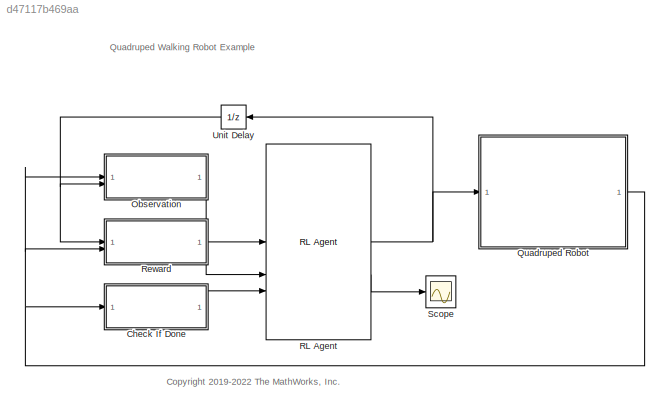
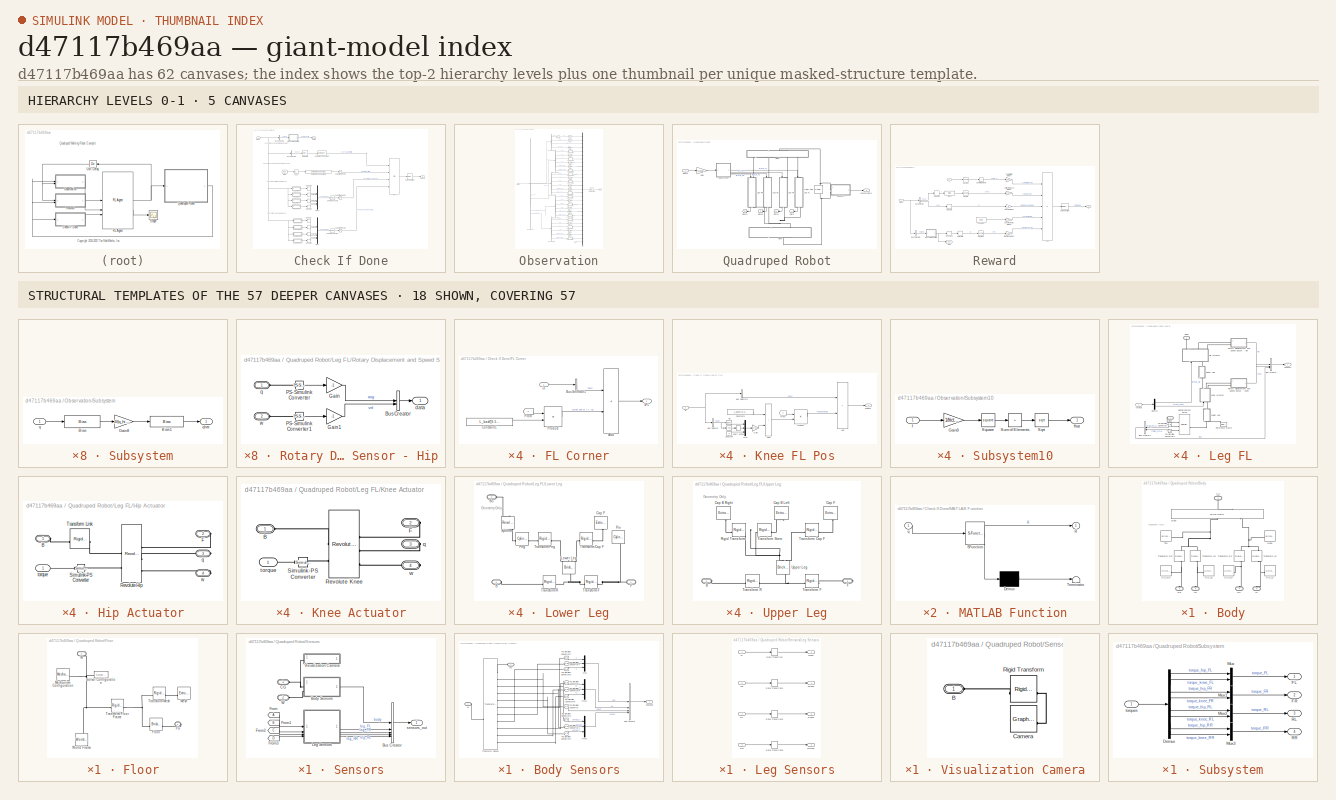
[diagram: thumbnail index - top-2 hierarchy levels (5 canvases) + 18 structural-template representatives of the remaining 57 canvases]
MODEL slx_d47117b469aa
KIND model
CONFIG AbsTol = auto
CONFIG EnableMultiTasking = off
CONFIG FixedStep = auto
CONFIG MaxStep = auto
CONFIG MinStep = auto
CONFIG RelTol = 1e-3
CONFIG SampleTimeConstraint = Unconstrained
CONFIG SolverName = ode23tb
CONFIG StartTime = 0.0
CONFIG StopTime = 10.0
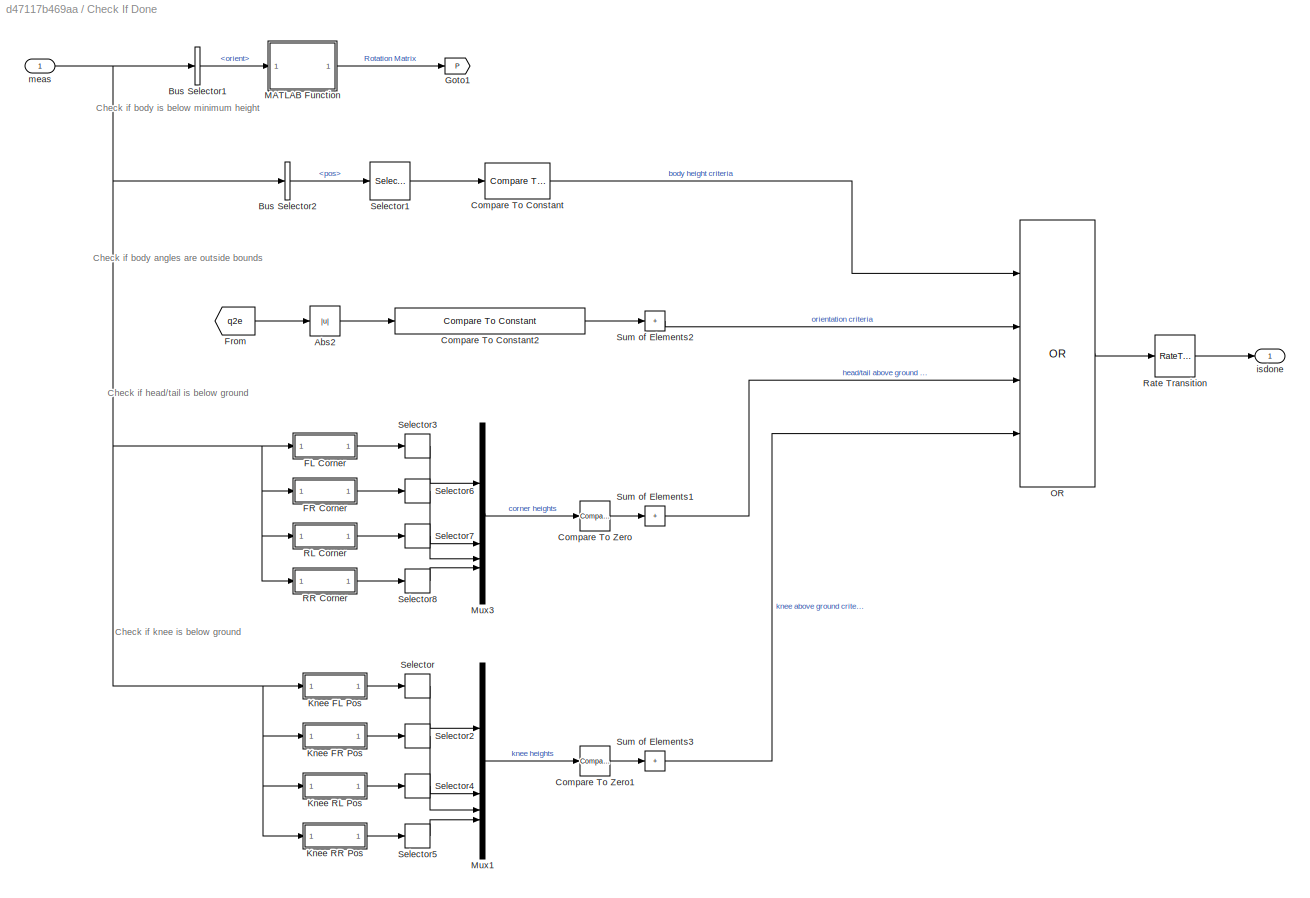
BLOCK [SubSystem] Check If Done
BLOCK [Abs] Check If Done/Abs2
  SaturateOnIntegerOverflow = off
  ZeroCross = off
BLOCK [BusSelector] Check If Done/Bus Selector1
  OutputSignals = body.orient
BLOCK [BusSelector] Check If Done/Bus Selector2
  OutputSignals = body.pos
BLOCK [Reference] Check If Done/Compare To Constant  REF=simulink/Logic and Bit
Operations/Compare
To Constant
  SourceBlock = simulink/Logic and Bit\nOperations/Compare\nTo Constant
  SourceType = Compare To Constant
BLOCK [Reference] Check If Done/Compare To Constant2  REF=simulink/Logic and Bit
Operations/Compare
To Constant
  SourceBlock = simulink/Logic and Bit\nOperations/Compare\nTo Constant
  SourceType = Compare To Constant
BLOCK [Reference] Check If Done/Compare To Zero  REF=simulink/Logic and Bit
Operations/Compare
To Zero
  SourceBlock = simulink/Logic and Bit\nOperations/Compare\nTo Zero
  SourceType = Compare To Zero
BLOCK [Reference] Check If Done/Compare To Zero1  REF=simulink/Logic and Bit
Operations/Compare
To Zero
  SourceBlock = simulink/Logic and Bit\nOperations/Compare\nTo Zero
  SourceType = Compare To Zero
BLOCK [SubSystem] Check If Done/FL Corner
BLOCK [Sum] Check If Done/FL Corner/Add
  IconShape = rectangular
BLOCK [BusSelector] Check If Done/FL Corner/Bus Selector1
  OutputSignals = body.pos
BLOCK [Constant] Check If Done/FL Corner/Constant1
  SampleTime = -1
  Value = L_back*[0.5; -0.5*0.1; 0.5*0.1]
BLOCK [From] Check If Done/FL Corner/From
  GotoTag = P
  TagVisibility = global
BLOCK [Product] Check If Done/FL Corner/Product
  Multiplication = Matrix(*)
BLOCK [Outport] Check If Done/FL Corner/cFL
  VectorParamsAs1DForOutWhenUnconnected = off
BLOCK [Inport] Check If Done/FL Corner/in
BLOCK [SubSystem] Check If Done/FR Corner
BLOCK [Sum] Check If Done/FR Corner/Add
  IconShape = rectangular
BLOCK [BusSelector] Check If Done/FR Corner/Bus Selector1
  OutputSignals = body.pos
BLOCK [Constant] Check If Done/FR Corner/Constant1
  SampleTime = -1
  Value = L_back*[0.5; -0.5*0.1; -0.5*0.1]
BLOCK [From] Check If Done/FR Corner/From
  GotoTag = P
  TagVisibility = global
BLOCK [Product] Check If Done/FR Corner/Product
  Multiplication = Matrix(*)
BLOCK [Outport] Check If Done/FR Corner/cFR
  VectorParamsAs1DForOutWhenUnconnected = off
BLOCK [Inport] Check If Done/FR Corner/in
BLOCK [From] Check If Done/From
  GotoTag = q2e
  TagVisibility = global
BLOCK [Goto] Check If Done/Goto1
  GotoTag = P
  TagVisibility = global
BLOCK [SubSystem] Check If Done/Knee FL Pos
BLOCK [Sum] Check If Done/Knee FL Pos/Add
  IconShape = rectangular
BLOCK [Sum] Check If Done/Knee FL Pos/Add1
  IconShape = rectangular
BLOCK [BusSelector] Check If Done/Knee FL Pos/Bus Selector
  OutputSignals = leg_FL.hip.ang
BLOCK [BusSelector] Check If Done/Knee FL Pos/Bus Selector1
  OutputSignals = body.pos
BLOCK [Constant] Check If Done/Knee FL Pos/Constant
  SampleTime = -1
  Value = 0
BLOCK [Constant] Check If Done/Knee FL Pos/Constant1
  SampleTime = -1
  Value = L_back*[0.5; 0; 0.5*0.1]
BLOCK [From] Check If Done/Knee FL Pos/From
  GotoTag = P
  TagVisibility = global
BLOCK [Gain] Check If Done/Knee FL Pos/Gain
  Gain = l1*1.1
BLOCK [Mux] Check If Done/Knee FL Pos/Mux
  DisplayOption = bar
  Inputs = 3
BLOCK [Product] Check If Done/Knee FL Pos/Product
  Multiplication = Matrix(*)
BLOCK [Trigonometry] Check If Done/Knee FL Pos/Sin
BLOCK [Trigonometry] Check If Done/Knee FL Pos/Sin1
  Operator = cos
BLOCK [UnaryMinus] Check If Done/Knee FL Pos/Unary Minus
BLOCK [Inport] Check If Done/Knee FL Pos/in
BLOCK [Outport] Check If Done/Knee FL Pos/kneeFL
  VectorParamsAs1DForOutWhenUnconnected = off
BLOCK [SubSystem] Check If Done/Knee FR Pos
BLOCK [Sum] Check If Done/Knee FR Pos/Add
  IconShape = rectangular
BLOCK [Sum] Check If Done/Knee FR Pos/Add1
  IconShape = rectangular
BLOCK [BusSelector] Check If Done/Knee FR Pos/Bus Selector
  OutputSignals = leg_FR.hip.ang
BLOCK [BusSelector] Check If Done/Knee FR Pos/Bus Selector1
  OutputSignals = body.pos
BLOCK [Constant] Check If Done/Knee FR Pos/Constant
  SampleTime = -1
  Value = 0
BLOCK [Constant] Check If Done/Knee FR Pos/Constant1
  SampleTime = -1
  Value = L_back*[0.5; 0; -0.5*0.1]
BLOCK [From] Check If Done/Knee FR Pos/From
  GotoTag = P
  TagVisibility = global
BLOCK [Gain] Check If Done/Knee FR Pos/Gain
  Gain = l1*1.1
BLOCK [Mux] Check If Done/Knee FR Pos/Mux
  DisplayOption = bar
  Inputs = 3
BLOCK [Product] Check If Done/Knee FR Pos/Product
  Multiplication = Matrix(*)
BLOCK [Trigonometry] Check If Done/Knee FR Pos/Sin
BLOCK [Trigonometry] Check If Done/Knee FR Pos/Sin1
  Operator = cos
BLOCK [UnaryMinus] Check If Done/Knee FR Pos/Unary Minus
BLOCK [Inport] Check If Done/Knee FR Pos/in
BLOCK [Outport] Check If Done/Knee FR Pos/kneeFR
  VectorParamsAs1DForOutWhenUnconnected = off
BLOCK [SubSystem] Check If Done/Knee RL Pos
BLOCK [Sum] Check If Done/Knee RL Pos/Add
  IconShape = rectangular
BLOCK [Sum] Check If Done/Knee RL Pos/Add1
  IconShape = rectangular
BLOCK [BusSelector] Check If Done/Knee RL Pos/Bus Selector
  OutputSignals = leg_RL.hip.ang
BLOCK [BusSelector] Check If Done/Knee RL Pos/Bus Selector1
  OutputSignals = body.pos
BLOCK [Constant] Check If Done/Knee RL Pos/Constant
  SampleTime = -1
  Value = 0
BLOCK [Constant] Check If Done/Knee RL Pos/Constant1
  SampleTime = -1
  Value = L_back*[-0.5; 0; 0.5*0.1]
BLOCK [From] Check If Done/Knee RL Pos/From
  GotoTag = P
  TagVisibility = global
BLOCK [Gain] Check If Done/Knee RL Pos/Gain
  Gain = l1*1.1
BLOCK [Mux] Check If Done/Knee RL Pos/Mux
  DisplayOption = bar
  Inputs = 3
BLOCK [Product] Check If Done/Knee RL Pos/Product
  Multiplication = Matrix(*)
BLOCK [Trigonometry] Check If Done/Knee RL Pos/Sin
BLOCK [Trigonometry] Check If Done/Knee RL Pos/Sin1
  Operator = cos
BLOCK [UnaryMinus] Check If Done/Knee RL Pos/Unary Minus
BLOCK [Inport] Check If Done/Knee RL Pos/in
BLOCK [Outport] Check If Done/Knee RL Pos/kneeRL
  VectorParamsAs1DForOutWhenUnconnected = off
BLOCK [SubSystem] Check If Done/Knee RR Pos
BLOCK [Sum] Check If Done/Knee RR Pos/Add
  IconShape = rectangular
BLOCK [Sum] Check If Done/Knee RR Pos/Add1
  IconShape = rectangular
BLOCK [BusSelector] Check If Done/Knee RR Pos/Bus Selector
  OutputSignals = leg_RR.hip.ang
BLOCK [BusSelector] Check If Done/Knee RR Pos/Bus Selector1
  OutputSignals = body.pos
BLOCK [Constant] Check If Done/Knee RR Pos/Constant
  SampleTime = -1
  Value = 0
BLOCK [Constant] Check If Done/Knee RR Pos/Constant1
  SampleTime = -1
  Value = L_back*[-0.5; 0; -0.5*0.1]
BLOCK [From] Check If Done/Knee RR Pos/From
  GotoTag = P
  TagVisibility = global
BLOCK [Gain] Check If Done/Knee RR Pos/Gain
  Gain = l1*1.1
BLOCK [Mux] Check If Done/Knee RR Pos/Mux
  DisplayOption = bar
  Inputs = 3
BLOCK [Product] Check If Done/Knee RR Pos/Product
  Multiplication = Matrix(*)
BLOCK [Trigonometry] Check If Done/Knee RR Pos/Sin
BLOCK [Trigonometry] Check If Done/Knee RR Pos/Sin1
  Operator = cos
BLOCK [UnaryMinus] Check If Done/Knee RR Pos/Unary Minus
BLOCK [Inport] Check If Done/Knee RR Pos/in
BLOCK [Outport] Check If Done/Knee RR Pos/kneeRR
  VectorParamsAs1DForOutWhenUnconnected = off
BLOCK [SubSystem] Check If Done/MATLAB Function
  ErrorFcn = Stateflow.Translate.translate
  PermitHierarchicalResolution = ExplicitOnly
  SFBlockType = MATLAB Function
  TreatAsAtomicUnit = on
BLOCK [Demux] Check If Done/MATLAB Function/ Demux 
  Outputs = 1
BLOCK [S-Function] Check If Done/MATLAB Function/ SFunction 
  EnableBusSupport = on
  FunctionName = sf_sfun
  PortCounts = [1 2]
  SFcnIsStateOwnerBlock = off
  SFunctionDeploymentMode = off
  Tag = Stateflow S-Function 2
BLOCK [Terminator] Check If Done/MATLAB Function/ Terminator 
BLOCK [Outport] Check If Done/MATLAB Function/R
  VectorParamsAs1DForOutWhenUnconnected = off
BLOCK [Inport] Check If Done/MATLAB Function/q
BLOCK [Mux] Check If Done/Mux1
  DisplayOption = bar
BLOCK [Mux] Check If Done/Mux3
  DisplayOption = bar
BLOCK [Logic] Check If Done/OR
  AllPortsSameDT = off
  Inputs = 4
  Operator = OR
  OutDataTypeStr = boolean
BLOCK [SubSystem] Check If Done/RL Corner
BLOCK [Sum] Check If Done/RL Corner/Add
  IconShape = rectangular
BLOCK [BusSelector] Check If Done/RL Corner/Bus Selector1
  OutputSignals = body.pos
BLOCK [Constant] Check If Done/RL Corner/Constant1
  SampleTime = -1
  Value = L_back*[-0.5; 0.5*0.1; 0.5*0.1]
BLOCK [From] Check If Done/RL Corner/From
  GotoTag = P
  TagVisibility = global
BLOCK [Product] Check If Done/RL Corner/Product
  Multiplication = Matrix(*)
BLOCK [Outport] Check If Done/RL Corner/cRL
  VectorParamsAs1DForOutWhenUnconnected = off
BLOCK [Inport] Check If Done/RL Corner/in
BLOCK [SubSystem] Check If Done/RR Corner
BLOCK [Sum] Check If Done/RR Corner/Add
  IconShape = rectangular
BLOCK [BusSelector] Check If Done/RR Corner/Bus Selector1
  OutputSignals = body.pos
BLOCK [Constant] Check If Done/RR Corner/Constant1
  SampleTime = -1
  Value = L_back*[-0.5; -0.5*0.1; -0.5*0.1]
BLOCK [From] Check If Done/RR Corner/From
  GotoTag = P
  TagVisibility = global
BLOCK [Product] Check If Done/RR Corner/Product
  Multiplication = Matrix(*)
BLOCK [Outport] Check If Done/RR Corner/cRR
  VectorParamsAs1DForOutWhenUnconnected = off
BLOCK [Inport] Check If Done/RR Corner/in
BLOCK [RateTransition] Check If Done/Rate Transition
BLOCK [Selector] Check If Done/Selector
  IndexOptions = Index vector (dialog)
  Indices = 2
  InputPortWidth = 3
  OutputSizes = 1
BLOCK [Selector] Check If Done/Selector1
  IndexOptions = Index vector (dialog)
  Indices = 2
  InputPortWidth = 3
  OutputSizes = 1
BLOCK [Selector] Check If Done/Selector2
  IndexOptions = Index vector (dialog)
  Indices = 2
  InputPortWidth = 3
  OutputSizes = 1
BLOCK [Selector] Check If Done/Selector3
  IndexOptions = Index vector (dialog)
  Indices = 2
  InputPortWidth = 3
  OutputSizes = 1
BLOCK [Selector] Check If Done/Selector4
  IndexOptions = Index vector (dialog)
  Indices = 2
  InputPortWidth = 3
  OutputSizes = 1
BLOCK [Selector] Check If Done/Selector5
  IndexOptions = Index vector (dialog)
  Indices = 2
  InputPortWidth = 3
  OutputSizes = 1
BLOCK [Selector] Check If Done/Selector6
  IndexOptions = Index vector (dialog)
  Indices = 2
  InputPortWidth = 3
  OutputSizes = 1
BLOCK [Selector] Check If Done/Selector7
  IndexOptions = Index vector (dialog)
  Indices = 2
  InputPortWidth = 3
  OutputSizes = 1
BLOCK [Selector] Check If Done/Selector8
  IndexOptions = Index vector (dialog)
  Indices = 2
  InputPortWidth = 3
  OutputSizes = 1
BLOCK [Sum] Check If Done/Sum of Elements1
  IconShape = rectangular
  Inputs = +
BLOCK [Sum] Check If Done/Sum of Elements2
  IconShape = rectangular
  Inputs = +
BLOCK [Sum] Check If Done/Sum of Elements3
  IconShape = rectangular
  Inputs = +
BLOCK [Outport] Check If Done/isdone
  VectorParamsAs1DForOutWhenUnconnected = off
BLOCK [Inport] Check If Done/meas
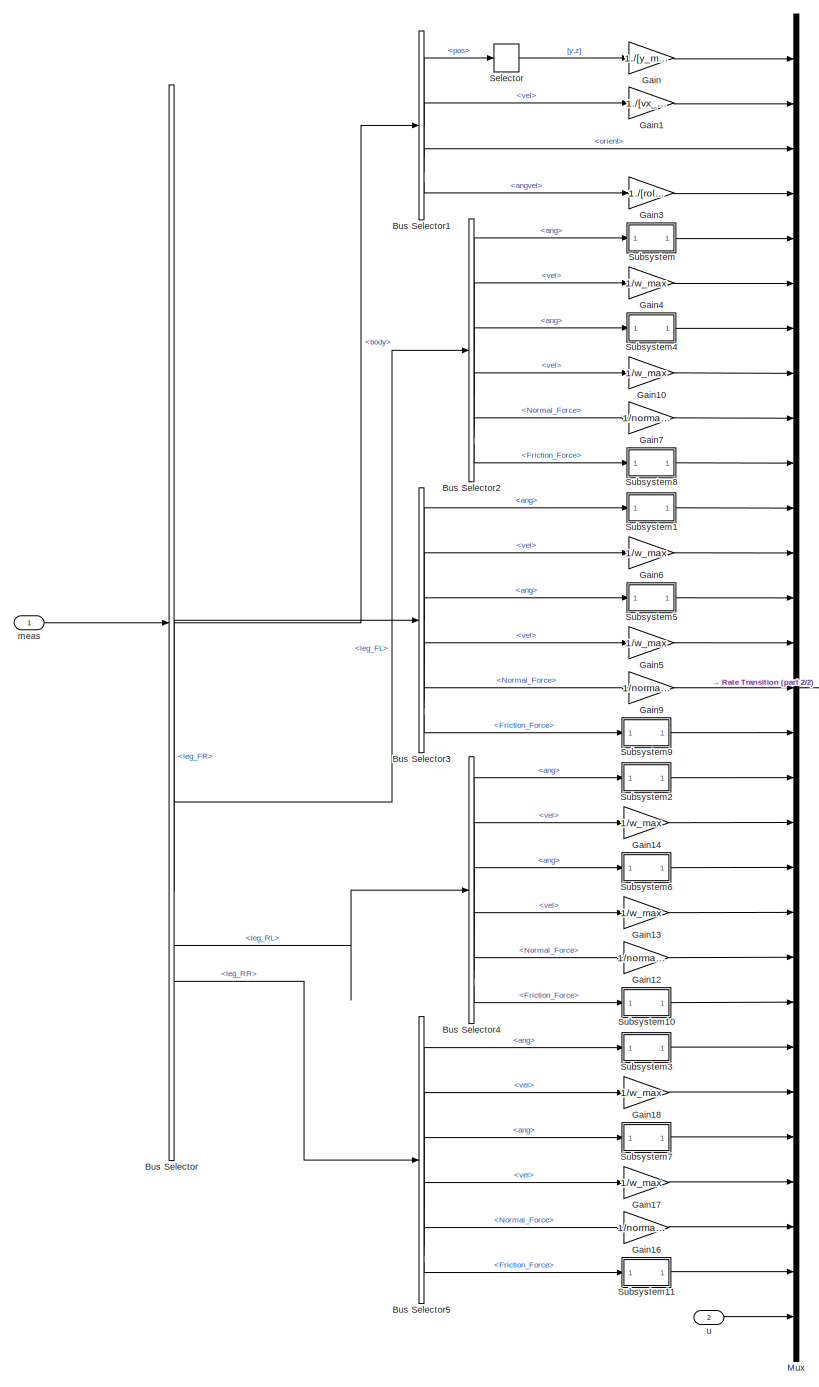
[diagram: Observation - part 1/2, most of the canvas]
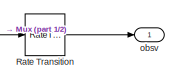
[diagram: Observation - part 2/2, middle right region]
BLOCK [SubSystem] Observation
BLOCK [BusSelector] Observation/Bus Selector
  OutputSignals = body,leg_FL,leg_FR,leg_RL,leg_RR
BLOCK [BusSelector] Observation/Bus Selector1
  OutputSignals = pos,vel,orient,angvel
BLOCK [BusSelector] Observation/Bus Selector2
  OutputSignals = hip.ang,hip.vel,knee.ang,knee.vel,foot.Normal_Force,foot.Friction_Force
BLOCK [BusSelector] Observation/Bus Selector3
  OutputSignals = hip.ang,hip.vel,knee.ang,knee.vel,foot.Normal_Force,foot.Friction_Force
BLOCK [BusSelector] Observation/Bus Selector4
  OutputSignals = hip.ang,hip.vel,knee.ang,knee.vel,foot.Normal_Force,foot.Friction_Force
BLOCK [BusSelector] Observation/Bus Selector5
  OutputSignals = hip.ang,hip.vel,knee.ang,knee.vel,foot.Normal_Force,foot.Friction_Force
BLOCK [Gain] Observation/Gain
  Gain = 1./[y_max z_max]
BLOCK [Gain] Observation/Gain1
  Gain = 1./[vx_max vy_max vz_max]
BLOCK [Gain] Observation/Gain10
  Gain = 1/w_max
BLOCK [Gain] Observation/Gain12
  Gain = 1/normal_force_max
BLOCK [Gain] Observation/Gain13
  Gain = 1/w_max
BLOCK [Gain] Observation/Gain14
  Gain = 1/w_max
BLOCK [Gain] Observation/Gain16
  Gain = 1/normal_force_max
BLOCK [Gain] Observation/Gain17
  Gain = 1/w_max
BLOCK [Gain] Observation/Gain18
  Gain = 1/w_max
BLOCK [Gain] Observation/Gain3
  Gain = 1./[roll_max yaw_max pitch_max]
BLOCK [Gain] Observation/Gain4
  Gain = 1/w_max
BLOCK [Gain] Observation/Gain5
  Gain = 1/w_max
BLOCK [Gain] Observation/Gain6
  Gain = 1/w_max
BLOCK [Gain] Observation/Gain7
  Gain = 1/normal_force_max
BLOCK [Gain] Observation/Gain9
  Gain = 1/normal_force_max
BLOCK [Mux] Observation/Mux
  DisplayOption = bar
  Inputs = 29
BLOCK [RateTransition] Observation/Rate Transition
BLOCK [Selector] Observation/Selector
  IndexOptions = Index vector (dialog)
  Indices = [2 3]
  InputPortWidth = 3
  OutputSizes = 1
BLOCK [SubSystem] Observation/Subsystem
BLOCK [Bias] Observation/Subsystem/Bias
  Bias = -q_hip_min
  SaturateOnIntegerOverflow = off
BLOCK [Bias] Observation/Subsystem/Bias1
  Bias = -1
  SaturateOnIntegerOverflow = off
BLOCK [Gain] Observation/Subsystem/Gain8
  Gain = 2/(q_hip_max-q_hip_min)
BLOCK [Inport] Observation/Subsystem/q
BLOCK [Outport] Observation/Subsystem/qhat
  VectorParamsAs1DForOutWhenUnconnected = off
BLOCK [SubSystem] Observation/Subsystem1
BLOCK [Bias] Observation/Subsystem1/Bias
  Bias = -q_hip_min
  SaturateOnIntegerOverflow = off
BLOCK [Bias] Observation/Subsystem1/Bias1
  Bias = -1
  SaturateOnIntegerOverflow = off
BLOCK [Gain] Observation/Subsystem1/Gain8
  Gain = 2/(q_hip_max-q_hip_min)
BLOCK [Inport] Observation/Subsystem1/q
BLOCK [Outport] Observation/Subsystem1/qhat
  VectorParamsAs1DForOutWhenUnconnected = off
BLOCK [SubSystem] Observation/Subsystem10
BLOCK [Gain] Observation/Subsystem10/Gain8
  Gain = 1/friction_force_max
BLOCK [Sqrt] Observation/Subsystem10/Sqrt
BLOCK [Math] Observation/Subsystem10/Square
  Operator = square
  SignedPower = on
BLOCK [Sum] Observation/Subsystem10/Sum of Elements
  IconShape = rectangular
  Inputs = +
BLOCK [Inport] Observation/Subsystem10/f
BLOCK [Outport] Observation/Subsystem10/fhat
  VectorParamsAs1DForOutWhenUnconnected = off
BLOCK [SubSystem] Observation/Subsystem11
BLOCK [Gain] Observation/Subsystem11/Gain8
  Gain = 1/friction_force_max
BLOCK [Sqrt] Observation/Subsystem11/Sqrt
BLOCK [Math] Observation/Subsystem11/Square
  Operator = square
  SignedPower = on
BLOCK [Sum] Observation/Subsystem11/Sum of Elements
  IconShape = rectangular
  Inputs = +
BLOCK [Inport] Observation/Subsystem11/f
BLOCK [Outport] Observation/Subsystem11/fhat
  VectorParamsAs1DForOutWhenUnconnected = off
BLOCK [SubSystem] Observation/Subsystem2
BLOCK [Bias] Observation/Subsystem2/Bias
  Bias = -q_hip_min
  SaturateOnIntegerOverflow = off
BLOCK [Bias] Observation/Subsystem2/Bias1
  Bias = -1
  SaturateOnIntegerOverflow = off
BLOCK [Gain] Observation/Subsystem2/Gain8
  Gain = 2/(q_hip_max-q_hip_min)
BLOCK [Inport] Observation/Subsystem2/q
BLOCK [Outport] Observation/Subsystem2/qhat
  VectorParamsAs1DForOutWhenUnconnected = off
BLOCK [SubSystem] Observation/Subsystem3
BLOCK [Bias] Observation/Subsystem3/Bias
  Bias = -q_hip_min
  SaturateOnIntegerOverflow = off
BLOCK [Bias] Observation/Subsystem3/Bias1
  Bias = -1
  SaturateOnIntegerOverflow = off
BLOCK [Gain] Observation/Subsystem3/Gain8
  Gain = 2/(q_hip_max-q_hip_min)
BLOCK [Inport] Observation/Subsystem3/q
BLOCK [Outport] Observation/Subsystem3/qhat
  VectorParamsAs1DForOutWhenUnconnected = off
BLOCK [SubSystem] Observation/Subsystem4
BLOCK [Bias] Observation/Subsystem4/Bias
  Bias = -q_knee_min
  SaturateOnIntegerOverflow = off
BLOCK [Bias] Observation/Subsystem4/Bias1
  Bias = -1
  SaturateOnIntegerOverflow = off
BLOCK [Gain] Observation/Subsystem4/Gain8
  Gain = 2/(q_knee_max-q_knee_min)
BLOCK [Inport] Observation/Subsystem4/q
BLOCK [Outport] Observation/Subsystem4/qhat
  VectorParamsAs1DForOutWhenUnconnected = off
BLOCK [SubSystem] Observation/Subsystem5
BLOCK [Bias] Observation/Subsystem5/Bias
  Bias = -q_knee_min
  SaturateOnIntegerOverflow = off
BLOCK [Bias] Observation/Subsystem5/Bias1
  Bias = -1
  SaturateOnIntegerOverflow = off
BLOCK [Gain] Observation/Subsystem5/Gain8
  Gain = 2/(q_knee_max-q_knee_min)
BLOCK [Inport] Observation/Subsystem5/q
BLOCK [Outport] Observation/Subsystem5/qhat
  VectorParamsAs1DForOutWhenUnconnected = off
BLOCK [SubSystem] Observation/Subsystem6
BLOCK [Bias] Observation/Subsystem6/Bias
  Bias = -q_knee_min
  SaturateOnIntegerOverflow = off
BLOCK [Bias] Observation/Subsystem6/Bias1
  Bias = -1
  SaturateOnIntegerOverflow = off
BLOCK [Gain] Observation/Subsystem6/Gain8
  Gain = 2/(q_knee_max-q_knee_min)
BLOCK [Inport] Observation/Subsystem6/q
BLOCK [Outport] Observation/Subsystem6/qhat
  VectorParamsAs1DForOutWhenUnconnected = off
BLOCK [SubSystem] Observation/Subsystem7
BLOCK [Bias] Observation/Subsystem7/Bias
  Bias = -q_knee_min
  SaturateOnIntegerOverflow = off
BLOCK [Bias] Observation/Subsystem7/Bias1
  Bias = -1
  SaturateOnIntegerOverflow = off
BLOCK [Gain] Observation/Subsystem7/Gain8
  Gain = 2/(q_knee_max-q_knee_min)
BLOCK [Inport] Observation/Subsystem7/q
BLOCK [Outport] Observation/Subsystem7/qhat
  VectorParamsAs1DForOutWhenUnconnected = off
BLOCK [SubSystem] Observation/Subsystem8
BLOCK [Gain] Observation/Subsystem8/Gain8
  Gain = 1/friction_force_max
BLOCK [Sqrt] Observation/Subsystem8/Sqrt
BLOCK [Math] Observation/Subsystem8/Square
  Operator = square
  SignedPower = on
BLOCK [Sum] Observation/Subsystem8/Sum of Elements
  IconShape = rectangular
  Inputs = +
BLOCK [Inport] Observation/Subsystem8/f
BLOCK [Outport] Observation/Subsystem8/fhat
  VectorParamsAs1DForOutWhenUnconnected = off
BLOCK [SubSystem] Observation/Subsystem9
BLOCK [Gain] Observation/Subsystem9/Gain8
  Gain = 1/friction_force_max
BLOCK [Sqrt] Observation/Subsystem9/Sqrt
BLOCK [Math] Observation/Subsystem9/Square
  Operator = square
  SignedPower = on
BLOCK [Sum] Observation/Subsystem9/Sum of Elements
  IconShape = rectangular
  Inputs = +
BLOCK [Inport] Observation/Subsystem9/f
BLOCK [Outport] Observation/Subsystem9/fhat
  VectorParamsAs1DForOutWhenUnconnected = off
BLOCK [Inport] Observation/meas
BLOCK [Outport] Observation/obsv
  VectorParamsAs1DForOutWhenUnconnected = off
BLOCK [Inport] Observation/u
  Port = 2
BLOCK [SubSystem] Quadruped Robot
BLOCK [Reference] Quadruped Robot/6-DOF Joint  REF=sm_lib/Joints/6-DOF Joint
  NameLocation = right
  SourceBlock = sm_lib/Joints/6-DOF Joint
  SourceType = 6-DOF Joint
BLOCK [SubSystem] Quadruped Robot/Body
  Tag = CustomStyle
BLOCK [Reference] Quadruped Robot/Body/Body  REF=sm_lib/Body Elements/Brick Solid
  NameLocation = right
  SourceBlock = sm_lib/Body Elements/Brick Solid
  SourceType = Brick Solid
BLOCK [PMIOPort] Quadruped Robot/Body/CG
  NameLocation = right
  Side = Right
BLOCK [PMIOPort] Quadruped Robot/Body/LF
  NameLocation = right
  Port = 5
  Side = Left
BLOCK [PMIOPort] Quadruped Robot/Body/LR
  NameLocation = right
  Port = 3
  Side = Left
BLOCK [Reference] Quadruped Robot/Body/Nose  REF=sm_lib/Body Elements/Brick Solid
  SourceBlock = sm_lib/Body Elements/Brick Solid
  SourceType = Brick Solid
BLOCK [Reference] Quadruped Robot/Body/Pin LF  REF=sm_lib/Body Elements/Cylindrical Solid
  SourceBlock = sm_lib/Body Elements/Cylindrical Solid
  SourceType = Cylindrical Solid
BLOCK [Reference] Quadruped Robot/Body/Pin LR  REF=sm_lib/Body Elements/Cylindrical Solid
  SourceBlock = sm_lib/Body Elements/Cylindrical Solid
  SourceType = Cylindrical Solid
BLOCK [Reference] Quadruped Robot/Body/Pin RF  REF=sm_lib/Body Elements/Cylindrical Solid
  SourceBlock = sm_lib/Body Elements/Cylindrical Solid
  SourceType = Cylindrical Solid
BLOCK [Reference] Quadruped Robot/Body/Pin RR  REF=sm_lib/Body Elements/Cylindrical Solid
  SourceBlock = sm_lib/Body Elements/Cylindrical Solid
  SourceType = Cylindrical Solid
BLOCK [PMIOPort] Quadruped Robot/Body/RF
  NameLocation = left
  Port = 4
  Side = Left
BLOCK [PMIOPort] Quadruped Robot/Body/RR
  NameLocation = left
  Port = 2
  Side = Left
BLOCK [Reference] Quadruped Robot/Body/Tail  REF=sm_lib/Body Elements/Brick Solid
  SourceBlock = sm_lib/Body Elements/Brick Solid
  SourceType = Brick Solid
BLOCK [Reference] Quadruped Robot/Body/Transform LF  REF=sm_lib/Frames and
Transforms/Rigid
Transform
  NameLocation = right
  SourceBlock = sm_lib/Frames and\nTransforms/Rigid\nTransform
  SourceType = Rigid\nTransform
BLOCK [Reference] Quadruped Robot/Body/Transform LR  REF=sm_lib/Frames and
Transforms/Rigid
Transform
  NameLocation = right
  SourceBlock = sm_lib/Frames and\nTransforms/Rigid\nTransform
  SourceType = Rigid\nTransform
BLOCK [Reference] Quadruped Robot/Body/Transform RF  REF=sm_lib/Frames and
Transforms/Rigid
Transform
  NameLocation = left
  SourceBlock = sm_lib/Frames and\nTransforms/Rigid\nTransform
  SourceType = Rigid\nTransform
BLOCK [Reference] Quadruped Robot/Body/Transform RR  REF=sm_lib/Frames and
Transforms/Rigid
Transform
  NameLocation = left
  SourceBlock = sm_lib/Frames and\nTransforms/Rigid\nTransform
  SourceType = Rigid\nTransform
BLOCK [SubSystem] Quadruped Robot/Floor
BLOCK [PMIOPort] Quadruped Robot/Floor/FG
  Side = Right
BLOCK [Reference] Quadruped Robot/Floor/Floor  REF=sm_lib/Body Elements/Brick Solid
  NameLocation = top
  SourceBlock = sm_lib/Body Elements/Brick Solid
  SourceType = Brick Solid
BLOCK [Reference] Quadruped Robot/Floor/Mechanism Configuration  REF=sm_lib/Utilities/Mechanism
Configuration
  SourceBlock = sm_lib/Utilities/Mechanism\nConfiguration
  SourceType = Mechanism\nConfiguration
BLOCK [Reference] Quadruped Robot/Floor/Mesh  REF=sm_lib/Body Elements/Extruded Solid
  SourceBlock = sm_lib/Body Elements/Extruded Solid
  SourceType = Extruded Solid
BLOCK [Reference] Quadruped Robot/Floor/Solver Configuration  REF=nesl_utility/Solver
Configuration
  SourceBlock = nesl_utility/Solver\nConfiguration
  SourceType = Solver\nConfiguration
BLOCK [Reference] Quadruped Robot/Floor/Transform Floor Frame  REF=sm_lib/Frames and
Transforms/Rigid
Transform
  NameLocation = top
  SourceBlock = sm_lib/Frames and\nTransforms/Rigid\nTransform
  SourceType = Rigid\nTransform
BLOCK [Reference] Quadruped Robot/Floor/Transform Mesh  REF=sm_lib/Frames and
Transforms/Rigid
Transform
  SourceBlock = sm_lib/Frames and\nTransforms/Rigid\nTransform
  SourceType = Rigid\nTransform
BLOCK [PMIOPort] Quadruped Robot/Floor/W
  NameLocation = right
  Port = 2
  Side = Left
BLOCK [Reference] Quadruped Robot/Floor/World Frame  REF=sm_lib/Frames and
Transforms/World Frame
  NameLocation = right
  SourceBlock = sm_lib/Frames and\nTransforms/World Frame
  SourceType = World Frame
BLOCK [Gain] Quadruped Robot/Gain
  Gain = u_max
BLOCK [Goto] Quadruped Robot/Goto
  NameLocation = top
  TagVisibility = global
BLOCK [Goto] Quadruped Robot/Goto1
  GotoTag = B
  NameLocation = top
  TagVisibility = global
BLOCK [Goto] Quadruped Robot/Goto2
  GotoTag = C
  NameLocation = top
  TagVisibility = global
BLOCK [Goto] Quadruped Robot/Goto3
  GotoTag = D
  NameLocation = top
  TagVisibility = global
BLOCK [SubSystem] Quadruped Robot/Leg FL
  NameLocation = left
  Tag = PublishSubsystemCustomStyle
BLOCK [PMIOPort] Quadruped Robot/Leg FL/Body
  NameLocation = left
  Side = Left
BLOCK [BusCreator] Quadruped Robot/Leg FL/Bus Creator
  DisplayOption = bar
  InheritFromInputs = on
  Inputs = 3
BLOCK [BusCreator] Quadruped Robot/Leg FL/Bus Creator1
  DisplayOption = bar
  InheritFromInputs = on
  Inputs = 2
  NameLocation = top
BLOCK [Demux] Quadruped Robot/Leg FL/Demux
  Outputs = 2
BLOCK [PMIOPort] Quadruped Robot/Leg FL/Floor
  Port = 2
  Side = Right
  Tag = PMCPort
BLOCK [SubSystem] Quadruped Robot/Leg FL/Hip Actuator
  NameLocation = right
BLOCK [PMIOPort] Quadruped Robot/Leg FL/Hip Actuator/B
  Side = Left
BLOCK [PMIOPort] Quadruped Robot/Leg FL/Hip Actuator/F
  Port = 2
  Side = Right
BLOCK [Reference] Quadruped Robot/Leg FL/Hip Actuator/Revolute Hip  REF=sm_lib/Joints/Revolute Joint
  NameLocation = top
  SourceBlock = sm_lib/Joints/Revolute Joint
  SourceType = Revolute Joint
BLOCK [Reference] Quadruped Robot/Leg FL/Hip Actuator/Simulink-PS Converter  REF=nesl_utility/Simulink-PS
Converter
  SourceBlock = nesl_utility/Simulink-PS\nConverter
  SourceType = Simulink-PS\nConverter
BLOCK [Reference] Quadruped Robot/Leg FL/Hip Actuator/Transform Link  REF=sm_lib/Frames and
Transforms/Rigid
Transform
  SourceBlock = sm_lib/Frames and\nTransforms/Rigid\nTransform
  SourceType = Rigid\nTransform
BLOCK [PMIOPort] Quadruped Robot/Leg FL/Hip Actuator/q
  Port = 3
  Side = Right
BLOCK [Inport] Quadruped Robot/Leg FL/Hip Actuator/torque
BLOCK [PMIOPort] Quadruped Robot/Leg FL/Hip Actuator/w
  Port = 4
  Side = Right
BLOCK [SubSystem] Quadruped Robot/Leg FL/Knee Actuator
  NameLocation = right
BLOCK [PMIOPort] Quadruped Robot/Leg FL/Knee Actuator/B
  Side = Left
BLOCK [PMIOPort] Quadruped Robot/Leg FL/Knee Actuator/F
  Port = 2
  Side = Right
BLOCK [Reference] Quadruped Robot/Leg FL/Knee Actuator/Revolute Knee  REF=sm_lib/Joints/Revolute Joint
  SourceBlock = sm_lib/Joints/Revolute Joint
  SourceType = Revolute Joint
BLOCK [Reference] Quadruped Robot/Leg FL/Knee Actuator/Simulink-PS Converter  REF=nesl_utility/Simulink-PS
Converter
  SourceBlock = nesl_utility/Simulink-PS\nConverter
  SourceType = Simulink-PS\nConverter
BLOCK [PMIOPort] Quadruped Robot/Leg FL/Knee Actuator/q
  Port = 3
  Side = Right
BLOCK [Inport] Quadruped Robot/Leg FL/Knee Actuator/torque
  NameLocation = top
BLOCK [PMIOPort] Quadruped Robot/Leg FL/Knee Actuator/w
  Port = 4
  Side = Right
BLOCK [SubSystem] Quadruped Robot/Leg FL/Lower Leg
  NameLocation = right
BLOCK [PMIOPort] Quadruped Robot/Leg FL/Lower Leg/B
  Port = 3
  Side = Left
BLOCK [Reference] Quadruped Robot/Leg FL/Lower Leg/Cap F  REF=sm_lib/Body Elements/Extruded Solid
  NameLocation = left
  SourceBlock = sm_lib/Body Elements/Extruded Solid
  SourceType = Extruded Solid
BLOCK [PMIOPort] Quadruped Robot/Leg FL/Lower Leg/F
  Side = Right
BLOCK [Reference] Quadruped Robot/Leg FL/Lower Leg/Lower Leg  REF=sm_lib/Body Elements/Brick Solid
  NameLocation = left
  SourceBlock = sm_lib/Body Elements/Brick Solid
  SourceType = Brick Solid
BLOCK [Reference] Quadruped Robot/Leg FL/Lower Leg/Peg  REF=sm_lib/Body Elements/Cylindrical Solid
  SourceBlock = sm_lib/Body Elements/Cylindrical Solid
  SourceType = Cylindrical Solid
BLOCK [Reference] Quadruped Robot/Leg FL/Lower Leg/Pin  REF=sm_lib/Body Elements/Cylindrical Solid
  NameLocation = left
  SourceBlock = sm_lib/Body Elements/Cylindrical Solid
  SourceType = Cylindrical Solid
BLOCK [PMIOPort] Quadruped Robot/Leg FL/Lower Leg/SG
  Port = 2
  Side = Left
BLOCK [Reference] Quadruped Robot/Leg FL/Lower Leg/Sphere  REF=sm_lib/Body Elements/Revolved Solid
  NameLocation = right
  SourceBlock = sm_lib/Body Elements/Revolved Solid
  SourceType = Revolved Solid
BLOCK [Reference] Quadruped Robot/Leg FL/Lower Leg/Transform Cap F  REF=sm_lib/Frames and
Transforms/Rigid
Transform
  SourceBlock = sm_lib/Frames and\nTransforms/Rigid\nTransform
  SourceType = Rigid\nTransform
BLOCK [Reference] Quadruped Robot/Leg FL/Lower Leg/Transform F  REF=sm_lib/Frames and
Transforms/Rigid
Transform
  SourceBlock = sm_lib/Frames and\nTransforms/Rigid\nTransform
  SourceType = Rigid\nTransform
BLOCK [Reference] Quadruped Robot/Leg FL/Lower Leg/Transform Peg  REF=sm_lib/Frames and
Transforms/Rigid
Transform
  SourceBlock = sm_lib/Frames and\nTransforms/Rigid\nTransform
  SourceType = Rigid\nTransform
BLOCK [Reference] Quadruped Robot/Leg FL/Lower Leg/Transform R  REF=sm_lib/Frames and
Transforms/Rigid
Transform
  SourceBlock = sm_lib/Frames and\nTransforms/Rigid\nTransform
  SourceType = Rigid\nTransform
BLOCK [Reference] Quadruped Robot/Leg FL/PS-Simulink Converter  REF=nesl_utility/PS-Simulink
Converter
  NameLocation = top
  SourceBlock = nesl_utility/PS-Simulink\nConverter
  SourceType = PS-Simulink\nConverter
BLOCK [Reference] Quadruped Robot/Leg FL/PS-Simulink Converter1  REF=nesl_utility/PS-Simulink
Converter
  NameLocation = top
  SourceBlock = nesl_utility/PS-Simulink\nConverter
  SourceType = PS-Simulink\nConverter
BLOCK [Reference] Quadruped Robot/Leg FL/Reference Frame  REF=sm_lib/Frames and
Transforms/Reference
Frame
  SourceBlock = sm_lib/Frames and\nTransforms/Reference\nFrame
  SourceType = Reference\nFrame
BLOCK [SubSystem] Quadruped Robot/Leg FL/Rotary Displacement and Speed Sensor - Hip
BLOCK [BusCreator] Quadruped Robot/Leg FL/Rotary Displacement and Speed Sensor - Hip/Bus Creator
  DisplayOption = bar
  InheritFromInputs = on
  Inputs = 2
BLOCK [Gain] Quadruped Robot/Leg FL/Rotary Displacement and Speed Sensor - Hip/Gain
  Gain = -1
BLOCK [Gain] Quadruped Robot/Leg FL/Rotary Displacement and Speed Sensor - Hip/Gain1
  Gain = -1
BLOCK [Reference] Quadruped Robot/Leg FL/Rotary Displacement and Speed Sensor - Hip/PS-Simulink Converter  REF=nesl_utility/PS-Simulink
Converter
  SourceBlock = nesl_utility/PS-Simulink\nConverter
  SourceType = PS-Simulink\nConverter
BLOCK [Reference] Quadruped Robot/Leg FL/Rotary Displacement and Speed Sensor - Hip/PS-Simulink Converter1  REF=nesl_utility/PS-Simulink
Converter
  SourceBlock = nesl_utility/PS-Simulink\nConverter
  SourceType = PS-Simulink\nConverter
BLOCK [Outport] Quadruped Robot/Leg FL/Rotary Displacement and Speed Sensor - Hip/data
  VectorParamsAs1DForOutWhenUnconnected = off
BLOCK [PMIOPort] Quadruped Robot/Leg FL/Rotary Displacement and Speed Sensor - Hip/q
  Side = Left
BLOCK [PMIOPort] Quadruped Robot/Leg FL/Rotary Displacement and Speed Sensor - Hip/w
  Port = 2
  Side = Left
BLOCK [SubSystem] Quadruped Robot/Leg FL/Rotary Displacement and Speed Sensor - Knee
BLOCK [BusCreator] Quadruped Robot/Leg FL/Rotary Displacement and Speed Sensor - Knee/Bus Creator
  DisplayOption = bar
  InheritFromInputs = on
  Inputs = 2
BLOCK [Gain] Quadruped Robot/Leg FL/Rotary Displacement and Speed Sensor - Knee/Gain
  Gain = -1
  OutDataTypeStr = Inherit: Same as input
BLOCK [Gain] Quadruped Robot/Leg FL/Rotary Displacement and Speed Sensor - Knee/Gain1
  Gain = -1
  OutDataTypeStr = Inherit: Same as input
BLOCK [Reference] Quadruped Robot/Leg FL/Rotary Displacement and Speed Sensor - Knee/PS-Simulink Converter  REF=nesl_utility/PS-Simulink
Converter
  SourceBlock = nesl_utility/PS-Simulink\nConverter
  SourceType = PS-Simulink\nConverter
BLOCK [Reference] Quadruped Robot/Leg FL/Rotary Displacement and Speed Sensor - Knee/PS-Simulink Converter1  REF=nesl_utility/PS-Simulink
Converter
  SourceBlock = nesl_utility/PS-Simulink\nConverter
  SourceType = PS-Simulink\nConverter
BLOCK [Outport] Quadruped Robot/Leg FL/Rotary Displacement and Speed Sensor - Knee/data
  VectorParamsAs1DForOutWhenUnconnected = off
BLOCK [PMIOPort] Quadruped Robot/Leg FL/Rotary Displacement and Speed Sensor - Knee/q
  Side = Left
BLOCK [PMIOPort] Quadruped Robot/Leg FL/Rotary Displacement and Speed Sensor - Knee/w
  Port = 2
  Side = Left
BLOCK [Reference] Quadruped Robot/Leg FL/Spatial Contact Force  REF=sm_lib/Forces and
Torques/Spatial
Contact Force
  NameLocation = top
  SourceBlock = sm_lib/Forces and\nTorques/Spatial\nContact Force
  SourceType = Spatial\nContact Force
BLOCK [SubSystem] Quadruped Robot/Leg FL/Upper Leg
  NameLocation = right
BLOCK [PMIOPort] Quadruped Robot/Leg FL/Upper Leg/B
  Port = 2
  Side = Left
BLOCK [Reference] Quadruped Robot/Leg FL/Upper Leg/Cap B Left  REF=sm_lib/Body Elements/Extruded Solid
  NameLocation = right
  SourceBlock = sm_lib/Body Elements/Extruded Solid
  SourceType = Extruded Solid
BLOCK [Reference] Quadruped Robot/Leg FL/Upper Leg/Cap B Right  REF=sm_lib/Body Elements/Extruded Solid
  NameLocation = right
  SourceBlock = sm_lib/Body Elements/Extruded Solid
  SourceType = Extruded Solid
BLOCK [Reference] Quadruped Robot/Leg FL/Upper Leg/Cap F  REF=sm_lib/Body Elements/Extruded Solid
  NameLocation = left
  SourceBlock = sm_lib/Body Elements/Extruded Solid
  SourceType = Extruded Solid
BLOCK [PMIOPort] Quadruped Robot/Leg FL/Upper Leg/F
  Side = Right
BLOCK [Reference] Quadruped Robot/Leg FL/Upper Leg/Rigid Transform  REF=sm_lib/Frames and
Transforms/Rigid
Transform
  SourceBlock = sm_lib/Frames and\nTransforms/Rigid\nTransform
  SourceType = Rigid\nTransform
BLOCK [Reference] Quadruped Robot/Leg FL/Upper Leg/Transform Cap F  REF=sm_lib/Frames and
Transforms/Rigid
Transform
  SourceBlock = sm_lib/Frames and\nTransforms/Rigid\nTransform
  SourceType = Rigid\nTransform
BLOCK [Reference] Quadruped Robot/Leg FL/Upper Leg/Transform F  REF=sm_lib/Frames and
Transforms/Rigid
Transform
  SourceBlock = sm_lib/Frames and\nTransforms/Rigid\nTransform
  SourceType = Rigid\nTransform
BLOCK [Reference] Quadruped Robot/Leg FL/Upper Leg/Transform R  REF=sm_lib/Frames and
Transforms/Rigid
Transform
  SourceBlock = sm_lib/Frames and\nTransforms/Rigid\nTransform
  SourceType = Rigid\nTransform
BLOCK [Reference] Quadruped Robot/Leg FL/Upper Leg/Transform Stem   REF=sm_lib/Frames and
Transforms/Rigid
Transform
  SourceBlock = sm_lib/Frames and\nTransforms/Rigid\nTransform
  SourceType = Rigid\nTransform
BLOCK [Reference] Quadruped Robot/Leg FL/Upper Leg/Upper Leg  REF=sm_lib/Body Elements/Brick Solid
  NameLocation = left
  SourceBlock = sm_lib/Body Elements/Brick Solid
  SourceType = Brick Solid
BLOCK [Outport] Quadruped Robot/Leg FL/sensors
  VectorParamsAs1DForOutWhenUnconnected = off
BLOCK [Inport] Quadruped Robot/Leg FL/torque
BLOCK [SubSystem] Quadruped Robot/Leg FR
  NameLocation = left
  Tag = CustomStyle
BLOCK [PMIOPort] Quadruped Robot/Leg FR/Body
  NameLocation = left
  Side = Left
BLOCK [BusCreator] Quadruped Robot/Leg FR/Bus Creator
  DisplayOption = bar
  InheritFromInputs = on
  Inputs = 3
BLOCK [BusCreator] Quadruped Robot/Leg FR/Bus Creator1
  DisplayOption = bar
  InheritFromInputs = on
  Inputs = 2
  NameLocation = top
BLOCK [Demux] Quadruped Robot/Leg FR/Demux
  Outputs = 2
BLOCK [PMIOPort] Quadruped Robot/Leg FR/Floor
  Port = 2
  Side = Right
  Tag = PMCPort
BLOCK [SubSystem] Quadruped Robot/Leg FR/Hip Actuator
  NameLocation = right
BLOCK [PMIOPort] Quadruped Robot/Leg FR/Hip Actuator/B
  Side = Left
BLOCK [PMIOPort] Quadruped Robot/Leg FR/Hip Actuator/F
  Port = 2
  Side = Right
BLOCK [Reference] Quadruped Robot/Leg FR/Hip Actuator/Revolute Hip  REF=sm_lib/Joints/Revolute Joint
  NameLocation = top
  SourceBlock = sm_lib/Joints/Revolute Joint
  SourceType = Revolute Joint
BLOCK [Reference] Quadruped Robot/Leg FR/Hip Actuator/Simulink-PS Converter  REF=nesl_utility/Simulink-PS
Converter
  SourceBlock = nesl_utility/Simulink-PS\nConverter
  SourceType = Simulink-PS\nConverter
BLOCK [Reference] Quadruped Robot/Leg FR/Hip Actuator/Transform Link  REF=sm_lib/Frames and
Transforms/Rigid
Transform
  SourceBlock = sm_lib/Frames and\nTransforms/Rigid\nTransform
  SourceType = Rigid\nTransform
BLOCK [PMIOPort] Quadruped Robot/Leg FR/Hip Actuator/q
  Port = 3
  Side = Right
BLOCK [Inport] Quadruped Robot/Leg FR/Hip Actuator/torque
BLOCK [PMIOPort] Quadruped Robot/Leg FR/Hip Actuator/w
  Port = 4
  Side = Right
BLOCK [SubSystem] Quadruped Robot/Leg FR/Knee Actuator
  NameLocation = right
BLOCK [PMIOPort] Quadruped Robot/Leg FR/Knee Actuator/B
  Side = Left
BLOCK [PMIOPort] Quadruped Robot/Leg FR/Knee Actuator/F
  Port = 2
  Side = Right
BLOCK [Reference] Quadruped Robot/Leg FR/Knee Actuator/Revolute Knee  REF=sm_lib/Joints/Revolute Joint
  SourceBlock = sm_lib/Joints/Revolute Joint
  SourceType = Revolute Joint
BLOCK [Reference] Quadruped Robot/Leg FR/Knee Actuator/Simulink-PS Converter  REF=nesl_utility/Simulink-PS
Converter
  SourceBlock = nesl_utility/Simulink-PS\nConverter
  SourceType = Simulink-PS\nConverter
BLOCK [PMIOPort] Quadruped Robot/Leg FR/Knee Actuator/q
  Port = 3
  Side = Right
BLOCK [Inport] Quadruped Robot/Leg FR/Knee Actuator/torque
  NameLocation = top
BLOCK [PMIOPort] Quadruped Robot/Leg FR/Knee Actuator/w
  Port = 4
  Side = Right
BLOCK [SubSystem] Quadruped Robot/Leg FR/Lower Leg
  NameLocation = right
BLOCK [PMIOPort] Quadruped Robot/Leg FR/Lower Leg/B
  Port = 3
  Side = Left
BLOCK [Reference] Quadruped Robot/Leg FR/Lower Leg/Cap F  REF=sm_lib/Body Elements/Extruded Solid
  NameLocation = left
  SourceBlock = sm_lib/Body Elements/Extruded Solid
  SourceType = Extruded Solid
BLOCK [PMIOPort] Quadruped Robot/Leg FR/Lower Leg/F
  Side = Right
BLOCK [Reference] Quadruped Robot/Leg FR/Lower Leg/Lower Leg  REF=sm_lib/Body Elements/Brick Solid
  NameLocation = left
  SourceBlock = sm_lib/Body Elements/Brick Solid
  SourceType = Brick Solid
BLOCK [Reference] Quadruped Robot/Leg FR/Lower Leg/Peg  REF=sm_lib/Body Elements/Cylindrical Solid
  SourceBlock = sm_lib/Body Elements/Cylindrical Solid
  SourceType = Cylindrical Solid
BLOCK [Reference] Quadruped Robot/Leg FR/Lower Leg/Pin  REF=sm_lib/Body Elements/Cylindrical Solid
  NameLocation = left
  SourceBlock = sm_lib/Body Elements/Cylindrical Solid
  SourceType = Cylindrical Solid
BLOCK [PMIOPort] Quadruped Robot/Leg FR/Lower Leg/SG
  Port = 2
  Side = Left
BLOCK [Reference] Quadruped Robot/Leg FR/Lower Leg/Sphere  REF=sm_lib/Body Elements/Revolved Solid
  NameLocation = right
  SourceBlock = sm_lib/Body Elements/Revolved Solid
  SourceType = Revolved Solid
BLOCK [Reference] Quadruped Robot/Leg FR/Lower Leg/Transform Cap F  REF=sm_lib/Frames and
Transforms/Rigid
Transform
  SourceBlock = sm_lib/Frames and\nTransforms/Rigid\nTransform
  SourceType = Rigid\nTransform
BLOCK [Reference] Quadruped Robot/Leg FR/Lower Leg/Transform F  REF=sm_lib/Frames and
Transforms/Rigid
Transform
  SourceBlock = sm_lib/Frames and\nTransforms/Rigid\nTransform
  SourceType = Rigid\nTransform
BLOCK [Reference] Quadruped Robot/Leg FR/Lower Leg/Transform Peg  REF=sm_lib/Frames and
Transforms/Rigid
Transform
  SourceBlock = sm_lib/Frames and\nTransforms/Rigid\nTransform
  SourceType = Rigid\nTransform
BLOCK [Reference] Quadruped Robot/Leg FR/Lower Leg/Transform R  REF=sm_lib/Frames and
Transforms/Rigid
Transform
  SourceBlock = sm_lib/Frames and\nTransforms/Rigid\nTransform
  SourceType = Rigid\nTransform
BLOCK [Reference] Quadruped Robot/Leg FR/PS-Simulink Converter  REF=nesl_utility/PS-Simulink
Converter
  NameLocation = top
  SourceBlock = nesl_utility/PS-Simulink\nConverter
  SourceType = PS-Simulink\nConverter
BLOCK [Reference] Quadruped Robot/Leg FR/PS-Simulink Converter1  REF=nesl_utility/PS-Simulink
Converter
  NameLocation = top
  SourceBlock = nesl_utility/PS-Simulink\nConverter
  SourceType = PS-Simulink\nConverter
BLOCK [Reference] Quadruped Robot/Leg FR/Reference Frame  REF=sm_lib/Frames and
Transforms/Reference
Frame
  SourceBlock = sm_lib/Frames and\nTransforms/Reference\nFrame
  SourceType = Reference\nFrame
BLOCK [SubSystem] Quadruped Robot/Leg FR/Rotary Displacement and Speed Sensor - Hip
BLOCK [BusCreator] Quadruped Robot/Leg FR/Rotary Displacement and Speed Sensor - Hip/Bus Creator
  DisplayOption = bar
  InheritFromInputs = on
  Inputs = 2
BLOCK [Gain] Quadruped Robot/Leg FR/Rotary Displacement and Speed Sensor - Hip/Gain
  Gain = -1
BLOCK [Gain] Quadruped Robot/Leg FR/Rotary Displacement and Speed Sensor - Hip/Gain1
  Gain = -1
BLOCK [Reference] Quadruped Robot/Leg FR/Rotary Displacement and Speed Sensor - Hip/PS-Simulink Converter  REF=nesl_utility/PS-Simulink
Converter
  SourceBlock = nesl_utility/PS-Simulink\nConverter
  SourceType = PS-Simulink\nConverter
BLOCK [Reference] Quadruped Robot/Leg FR/Rotary Displacement and Speed Sensor - Hip/PS-Simulink Converter1  REF=nesl_utility/PS-Simulink
Converter
  SourceBlock = nesl_utility/PS-Simulink\nConverter
  SourceType = PS-Simulink\nConverter
BLOCK [Outport] Quadruped Robot/Leg FR/Rotary Displacement and Speed Sensor - Hip/data
  VectorParamsAs1DForOutWhenUnconnected = off
BLOCK [PMIOPort] Quadruped Robot/Leg FR/Rotary Displacement and Speed Sensor - Hip/q
  Side = Left
BLOCK [PMIOPort] Quadruped Robot/Leg FR/Rotary Displacement and Speed Sensor - Hip/w
  Port = 2
  Side = Left
BLOCK [SubSystem] Quadruped Robot/Leg FR/Rotary Displacement and Speed Sensor - Knee
BLOCK [BusCreator] Quadruped Robot/Leg FR/Rotary Displacement and Speed Sensor - Knee/Bus Creator
  DisplayOption = bar
  InheritFromInputs = on
  Inputs = 2
BLOCK [Gain] Quadruped Robot/Leg FR/Rotary Displacement and Speed Sensor - Knee/Gain
  Gain = -1
  OutDataTypeStr = Inherit: Same as input
BLOCK [Gain] Quadruped Robot/Leg FR/Rotary Displacement and Speed Sensor - Knee/Gain1
  Gain = -1
  OutDataTypeStr = Inherit: Same as input
BLOCK [Reference] Quadruped Robot/Leg FR/Rotary Displacement and Speed Sensor - Knee/PS-Simulink Converter  REF=nesl_utility/PS-Simulink
Converter
  SourceBlock = nesl_utility/PS-Simulink\nConverter
  SourceType = PS-Simulink\nConverter
BLOCK [Reference] Quadruped Robot/Leg FR/Rotary Displacement and Speed Sensor - Knee/PS-Simulink Converter1  REF=nesl_utility/PS-Simulink
Converter
  SourceBlock = nesl_utility/PS-Simulink\nConverter
  SourceType = PS-Simulink\nConverter
BLOCK [Outport] Quadruped Robot/Leg FR/Rotary Displacement and Speed Sensor - Knee/data
  VectorParamsAs1DForOutWhenUnconnected = off
BLOCK [PMIOPort] Quadruped Robot/Leg FR/Rotary Displacement and Speed Sensor - Knee/q
  Side = Left
BLOCK [PMIOPort] Quadruped Robot/Leg FR/Rotary Displacement and Speed Sensor - Knee/w
  Port = 2
  Side = Left
BLOCK [Reference] Quadruped Robot/Leg FR/Spatial Contact Force  REF=sm_lib/Forces and
Torques/Spatial
Contact Force
  NameLocation = top
  SourceBlock = sm_lib/Forces and\nTorques/Spatial\nContact Force
  SourceType = Spatial\nContact Force
BLOCK [SubSystem] Quadruped Robot/Leg FR/Upper Leg
  NameLocation = right
BLOCK [PMIOPort] Quadruped Robot/Leg FR/Upper Leg/B
  Port = 2
  Side = Left
BLOCK [Reference] Quadruped Robot/Leg FR/Upper Leg/Cap B Left  REF=sm_lib/Body Elements/Extruded Solid
  NameLocation = right
  SourceBlock = sm_lib/Body Elements/Extruded Solid
  SourceType = Extruded Solid
BLOCK [Reference] Quadruped Robot/Leg FR/Upper Leg/Cap B Right  REF=sm_lib/Body Elements/Extruded Solid
  NameLocation = right
  SourceBlock = sm_lib/Body Elements/Extruded Solid
  SourceType = Extruded Solid
BLOCK [Reference] Quadruped Robot/Leg FR/Upper Leg/Cap F  REF=sm_lib/Body Elements/Extruded Solid
  NameLocation = left
  SourceBlock = sm_lib/Body Elements/Extruded Solid
  SourceType = Extruded Solid
BLOCK [PMIOPort] Quadruped Robot/Leg FR/Upper Leg/F
  Side = Right
BLOCK [Reference] Quadruped Robot/Leg FR/Upper Leg/Rigid Transform  REF=sm_lib/Frames and
Transforms/Rigid
Transform
  SourceBlock = sm_lib/Frames and\nTransforms/Rigid\nTransform
  SourceType = Rigid\nTransform
BLOCK [Reference] Quadruped Robot/Leg FR/Upper Leg/Transform Cap F  REF=sm_lib/Frames and
Transforms/Rigid
Transform
  SourceBlock = sm_lib/Frames and\nTransforms/Rigid\nTransform
  SourceType = Rigid\nTransform
BLOCK [Reference] Quadruped Robot/Leg FR/Upper Leg/Transform F  REF=sm_lib/Frames and
Transforms/Rigid
Transform
  SourceBlock = sm_lib/Frames and\nTransforms/Rigid\nTransform
  SourceType = Rigid\nTransform
BLOCK [Reference] Quadruped Robot/Leg FR/Upper Leg/Transform R  REF=sm_lib/Frames and
Transforms/Rigid
Transform
  SourceBlock = sm_lib/Frames and\nTransforms/Rigid\nTransform
  SourceType = Rigid\nTransform
BLOCK [Reference] Quadruped Robot/Leg FR/Upper Leg/Transform Stem   REF=sm_lib/Frames and
Transforms/Rigid
Transform
  SourceBlock = sm_lib/Frames and\nTransforms/Rigid\nTransform
  SourceType = Rigid\nTransform
BLOCK [Reference] Quadruped Robot/Leg FR/Upper Leg/Upper Leg  REF=sm_lib/Body Elements/Brick Solid
  NameLocation = left
  SourceBlock = sm_lib/Body Elements/Brick Solid
  SourceType = Brick Solid
BLOCK [Outport] Quadruped Robot/Leg FR/sensors
  VectorParamsAs1DForOutWhenUnconnected = off
BLOCK [Inport] Quadruped Robot/Leg FR/torque
BLOCK [SubSystem] Quadruped Robot/Leg RL
  NameLocation = left
  Tag = CustomStyle
BLOCK [PMIOPort] Quadruped Robot/Leg RL/Body
  NameLocation = left
  Side = Left
BLOCK [BusCreator] Quadruped Robot/Leg RL/Bus Creator
  DisplayOption = bar
  InheritFromInputs = on
  Inputs = 3
BLOCK [BusCreator] Quadruped Robot/Leg RL/Bus Creator1
  DisplayOption = bar
  InheritFromInputs = on
  Inputs = 2
  NameLocation = top
BLOCK [Demux] Quadruped Robot/Leg RL/Demux
  Outputs = 2
BLOCK [PMIOPort] Quadruped Robot/Leg RL/Floor
  Port = 2
  Side = Right
  Tag = PMCPort
BLOCK [SubSystem] Quadruped Robot/Leg RL/Hip Actuator
  NameLocation = right
BLOCK [PMIOPort] Quadruped Robot/Leg RL/Hip Actuator/B
  Side = Left
BLOCK [PMIOPort] Quadruped Robot/Leg RL/Hip Actuator/F
  Port = 2
  Side = Right
BLOCK [Reference] Quadruped Robot/Leg RL/Hip Actuator/Revolute Hip  REF=sm_lib/Joints/Revolute Joint
  NameLocation = top
  SourceBlock = sm_lib/Joints/Revolute Joint
  SourceType = Revolute Joint
BLOCK [Reference] Quadruped Robot/Leg RL/Hip Actuator/Simulink-PS Converter  REF=nesl_utility/Simulink-PS
Converter
  SourceBlock = nesl_utility/Simulink-PS\nConverter
  SourceType = Simulink-PS\nConverter
BLOCK [Reference] Quadruped Robot/Leg RL/Hip Actuator/Transform Link  REF=sm_lib/Frames and
Transforms/Rigid
Transform
  SourceBlock = sm_lib/Frames and\nTransforms/Rigid\nTransform
  SourceType = Rigid\nTransform
BLOCK [PMIOPort] Quadruped Robot/Leg RL/Hip Actuator/q
  Port = 3
  Side = Right
BLOCK [Inport] Quadruped Robot/Leg RL/Hip Actuator/torque
BLOCK [PMIOPort] Quadruped Robot/Leg RL/Hip Actuator/w
  Port = 4
  Side = Right
BLOCK [SubSystem] Quadruped Robot/Leg RL/Knee Actuator
  NameLocation = right
BLOCK [PMIOPort] Quadruped Robot/Leg RL/Knee Actuator/B
  Side = Left
BLOCK [PMIOPort] Quadruped Robot/Leg RL/Knee Actuator/F
  Port = 2
  Side = Right
BLOCK [Reference] Quadruped Robot/Leg RL/Knee Actuator/Revolute Knee  REF=sm_lib/Joints/Revolute Joint
  SourceBlock = sm_lib/Joints/Revolute Joint
  SourceType = Revolute Joint
BLOCK [Reference] Quadruped Robot/Leg RL/Knee Actuator/Simulink-PS Converter  REF=nesl_utility/Simulink-PS
Converter
  SourceBlock = nesl_utility/Simulink-PS\nConverter
  SourceType = Simulink-PS\nConverter
BLOCK [PMIOPort] Quadruped Robot/Leg RL/Knee Actuator/q
  Port = 3
  Side = Right
BLOCK [Inport] Quadruped Robot/Leg RL/Knee Actuator/torque
  NameLocation = top
BLOCK [PMIOPort] Quadruped Robot/Leg RL/Knee Actuator/w
  Port = 4
  Side = Right
BLOCK [SubSystem] Quadruped Robot/Leg RL/Lower Leg
  NameLocation = right
BLOCK [PMIOPort] Quadruped Robot/Leg RL/Lower Leg/B
  Port = 3
  Side = Left
BLOCK [Reference] Quadruped Robot/Leg RL/Lower Leg/Cap F  REF=sm_lib/Body Elements/Extruded Solid
  NameLocation = left
  SourceBlock = sm_lib/Body Elements/Extruded Solid
  SourceType = Extruded Solid
BLOCK [PMIOPort] Quadruped Robot/Leg RL/Lower Leg/F
  Side = Right
BLOCK [Reference] Quadruped Robot/Leg RL/Lower Leg/Lower Leg  REF=sm_lib/Body Elements/Brick Solid
  NameLocation = left
  SourceBlock = sm_lib/Body Elements/Brick Solid
  SourceType = Brick Solid
BLOCK [Reference] Quadruped Robot/Leg RL/Lower Leg/Peg  REF=sm_lib/Body Elements/Cylindrical Solid
  SourceBlock = sm_lib/Body Elements/Cylindrical Solid
  SourceType = Cylindrical Solid
BLOCK [Reference] Quadruped Robot/Leg RL/Lower Leg/Pin  REF=sm_lib/Body Elements/Cylindrical Solid
  NameLocation = left
  SourceBlock = sm_lib/Body Elements/Cylindrical Solid
  SourceType = Cylindrical Solid
BLOCK [PMIOPort] Quadruped Robot/Leg RL/Lower Leg/SG
  Port = 2
  Side = Left
BLOCK [Reference] Quadruped Robot/Leg RL/Lower Leg/Sphere  REF=sm_lib/Body Elements/Revolved Solid
  NameLocation = right
  SourceBlock = sm_lib/Body Elements/Revolved Solid
  SourceType = Revolved Solid
BLOCK [Reference] Quadruped Robot/Leg RL/Lower Leg/Transform Cap F  REF=sm_lib/Frames and
Transforms/Rigid
Transform
  SourceBlock = sm_lib/Frames and\nTransforms/Rigid\nTransform
  SourceType = Rigid\nTransform
BLOCK [Reference] Quadruped Robot/Leg RL/Lower Leg/Transform F  REF=sm_lib/Frames and
Transforms/Rigid
Transform
  SourceBlock = sm_lib/Frames and\nTransforms/Rigid\nTransform
  SourceType = Rigid\nTransform
BLOCK [Reference] Quadruped Robot/Leg RL/Lower Leg/Transform Peg  REF=sm_lib/Frames and
Transforms/Rigid
Transform
  SourceBlock = sm_lib/Frames and\nTransforms/Rigid\nTransform
  SourceType = Rigid\nTransform
BLOCK [Reference] Quadruped Robot/Leg RL/Lower Leg/Transform R  REF=sm_lib/Frames and
Transforms/Rigid
Transform
  SourceBlock = sm_lib/Frames and\nTransforms/Rigid\nTransform
  SourceType = Rigid\nTransform
BLOCK [Reference] Quadruped Robot/Leg RL/PS-Simulink Converter  REF=nesl_utility/PS-Simulink
Converter
  NameLocation = top
  SourceBlock = nesl_utility/PS-Simulink\nConverter
  SourceType = PS-Simulink\nConverter
BLOCK [Reference] Quadruped Robot/Leg RL/PS-Simulink Converter1  REF=nesl_utility/PS-Simulink
Converter
  NameLocation = top
  SourceBlock = nesl_utility/PS-Simulink\nConverter
  SourceType = PS-Simulink\nConverter
BLOCK [Reference] Quadruped Robot/Leg RL/Reference Frame  REF=sm_lib/Frames and
Transforms/Reference
Frame
  SourceBlock = sm_lib/Frames and\nTransforms/Reference\nFrame
  SourceType = Reference\nFrame
BLOCK [SubSystem] Quadruped Robot/Leg RL/Rotary Displacement and Speed Sensor - Hip
BLOCK [BusCreator] Quadruped Robot/Leg RL/Rotary Displacement and Speed Sensor - Hip/Bus Creator
  DisplayOption = bar
  InheritFromInputs = on
  Inputs = 2
BLOCK [Gain] Quadruped Robot/Leg RL/Rotary Displacement and Speed Sensor - Hip/Gain
  Gain = -1
BLOCK [Gain] Quadruped Robot/Leg RL/Rotary Displacement and Speed Sensor - Hip/Gain1
  Gain = -1
BLOCK [Reference] Quadruped Robot/Leg RL/Rotary Displacement and Speed Sensor - Hip/PS-Simulink Converter  REF=nesl_utility/PS-Simulink
Converter
  SourceBlock = nesl_utility/PS-Simulink\nConverter
  SourceType = PS-Simulink\nConverter
BLOCK [Reference] Quadruped Robot/Leg RL/Rotary Displacement and Speed Sensor - Hip/PS-Simulink Converter1  REF=nesl_utility/PS-Simulink
Converter
  SourceBlock = nesl_utility/PS-Simulink\nConverter
  SourceType = PS-Simulink\nConverter
BLOCK [Outport] Quadruped Robot/Leg RL/Rotary Displacement and Speed Sensor - Hip/data
  VectorParamsAs1DForOutWhenUnconnected = off
BLOCK [PMIOPort] Quadruped Robot/Leg RL/Rotary Displacement and Speed Sensor - Hip/q
  Side = Left
BLOCK [PMIOPort] Quadruped Robot/Leg RL/Rotary Displacement and Speed Sensor - Hip/w
  Port = 2
  Side = Left
BLOCK [SubSystem] Quadruped Robot/Leg RL/Rotary Displacement and Speed Sensor - Knee
BLOCK [BusCreator] Quadruped Robot/Leg RL/Rotary Displacement and Speed Sensor - Knee/Bus Creator
  DisplayOption = bar
  InheritFromInputs = on
  Inputs = 2
BLOCK [Gain] Quadruped Robot/Leg RL/Rotary Displacement and Speed Sensor - Knee/Gain
  Gain = -1
  OutDataTypeStr = Inherit: Same as input
BLOCK [Gain] Quadruped Robot/Leg RL/Rotary Displacement and Speed Sensor - Knee/Gain1
  Gain = -1
  OutDataTypeStr = Inherit: Same as input
BLOCK [Reference] Quadruped Robot/Leg RL/Rotary Displacement and Speed Sensor - Knee/PS-Simulink Converter  REF=nesl_utility/PS-Simulink
Converter
  SourceBlock = nesl_utility/PS-Simulink\nConverter
  SourceType = PS-Simulink\nConverter
BLOCK [Reference] Quadruped Robot/Leg RL/Rotary Displacement and Speed Sensor - Knee/PS-Simulink Converter1  REF=nesl_utility/PS-Simulink
Converter
  SourceBlock = nesl_utility/PS-Simulink\nConverter
  SourceType = PS-Simulink\nConverter
BLOCK [Outport] Quadruped Robot/Leg RL/Rotary Displacement and Speed Sensor - Knee/data
  VectorParamsAs1DForOutWhenUnconnected = off
BLOCK [PMIOPort] Quadruped Robot/Leg RL/Rotary Displacement and Speed Sensor - Knee/q
  Side = Left
BLOCK [PMIOPort] Quadruped Robot/Leg RL/Rotary Displacement and Speed Sensor - Knee/w
  Port = 2
  Side = Left
BLOCK [Reference] Quadruped Robot/Leg RL/Spatial Contact Force  REF=sm_lib/Forces and
Torques/Spatial
Contact Force
  NameLocation = top
  SourceBlock = sm_lib/Forces and\nTorques/Spatial\nContact Force
  SourceType = Spatial\nContact Force
BLOCK [SubSystem] Quadruped Robot/Leg RL/Upper Leg
  NameLocation = right
BLOCK [PMIOPort] Quadruped Robot/Leg RL/Upper Leg/B
  Port = 2
  Side = Left
BLOCK [Reference] Quadruped Robot/Leg RL/Upper Leg/Cap B Left  REF=sm_lib/Body Elements/Extruded Solid
  NameLocation = right
  SourceBlock = sm_lib/Body Elements/Extruded Solid
  SourceType = Extruded Solid
BLOCK [Reference] Quadruped Robot/Leg RL/Upper Leg/Cap B Right  REF=sm_lib/Body Elements/Extruded Solid
  NameLocation = right
  SourceBlock = sm_lib/Body Elements/Extruded Solid
  SourceType = Extruded Solid
BLOCK [Reference] Quadruped Robot/Leg RL/Upper Leg/Cap F  REF=sm_lib/Body Elements/Extruded Solid
  NameLocation = left
  SourceBlock = sm_lib/Body Elements/Extruded Solid
  SourceType = Extruded Solid
BLOCK [PMIOPort] Quadruped Robot/Leg RL/Upper Leg/F
  Side = Right
BLOCK [Reference] Quadruped Robot/Leg RL/Upper Leg/Rigid Transform  REF=sm_lib/Frames and
Transforms/Rigid
Transform
  SourceBlock = sm_lib/Frames and\nTransforms/Rigid\nTransform
  SourceType = Rigid\nTransform
BLOCK [Reference] Quadruped Robot/Leg RL/Upper Leg/Transform Cap F  REF=sm_lib/Frames and
Transforms/Rigid
Transform
  SourceBlock = sm_lib/Frames and\nTransforms/Rigid\nTransform
  SourceType = Rigid\nTransform
BLOCK [Reference] Quadruped Robot/Leg RL/Upper Leg/Transform F  REF=sm_lib/Frames and
Transforms/Rigid
Transform
  SourceBlock = sm_lib/Frames and\nTransforms/Rigid\nTransform
  SourceType = Rigid\nTransform
BLOCK [Reference] Quadruped Robot/Leg RL/Upper Leg/Transform R  REF=sm_lib/Frames and
Transforms/Rigid
Transform
  SourceBlock = sm_lib/Frames and\nTransforms/Rigid\nTransform
  SourceType = Rigid\nTransform
BLOCK [Reference] Quadruped Robot/Leg RL/Upper Leg/Transform Stem   REF=sm_lib/Frames and
Transforms/Rigid
Transform
  SourceBlock = sm_lib/Frames and\nTransforms/Rigid\nTransform
  SourceType = Rigid\nTransform
BLOCK [Reference] Quadruped Robot/Leg RL/Upper Leg/Upper Leg  REF=sm_lib/Body Elements/Brick Solid
  NameLocation = left
  SourceBlock = sm_lib/Body Elements/Brick Solid
  SourceType = Brick Solid
BLOCK [Outport] Quadruped Robot/Leg RL/sensors
  VectorParamsAs1DForOutWhenUnconnected = off
BLOCK [Inport] Quadruped Robot/Leg RL/torque
BLOCK [SubSystem] Quadruped Robot/Leg RR
  NameLocation = left
  Tag = CustomStyle
BLOCK [PMIOPort] Quadruped Robot/Leg RR/Body
  NameLocation = left
  Side = Left
BLOCK [BusCreator] Quadruped Robot/Leg RR/Bus Creator
  DisplayOption = bar
  InheritFromInputs = on
  Inputs = 3
BLOCK [BusCreator] Quadruped Robot/Leg RR/Bus Creator1
  DisplayOption = bar
  InheritFromInputs = on
  Inputs = 2
  NameLocation = top
BLOCK [Demux] Quadruped Robot/Leg RR/Demux
  Outputs = 2
BLOCK [PMIOPort] Quadruped Robot/Leg RR/Floor
  Port = 2
  Side = Right
  Tag = PMCPort
BLOCK [SubSystem] Quadruped Robot/Leg RR/Hip Actuator
  NameLocation = right
BLOCK [PMIOPort] Quadruped Robot/Leg RR/Hip Actuator/B
  Side = Left
BLOCK [PMIOPort] Quadruped Robot/Leg RR/Hip Actuator/F
  Port = 2
  Side = Right
BLOCK [Reference] Quadruped Robot/Leg RR/Hip Actuator/Revolute Hip  REF=sm_lib/Joints/Revolute Joint
  NameLocation = top
  SourceBlock = sm_lib/Joints/Revolute Joint
  SourceType = Revolute Joint
BLOCK [Reference] Quadruped Robot/Leg RR/Hip Actuator/Simulink-PS Converter  REF=nesl_utility/Simulink-PS
Converter
  SourceBlock = nesl_utility/Simulink-PS\nConverter
  SourceType = Simulink-PS\nConverter
BLOCK [Reference] Quadruped Robot/Leg RR/Hip Actuator/Transform Link  REF=sm_lib/Frames and
Transforms/Rigid
Transform
  SourceBlock = sm_lib/Frames and\nTransforms/Rigid\nTransform
  SourceType = Rigid\nTransform
BLOCK [PMIOPort] Quadruped Robot/Leg RR/Hip Actuator/q
  Port = 3
  Side = Right
BLOCK [Inport] Quadruped Robot/Leg RR/Hip Actuator/torque
BLOCK [PMIOPort] Quadruped Robot/Leg RR/Hip Actuator/w
  Port = 4
  Side = Right
BLOCK [SubSystem] Quadruped Robot/Leg RR/Knee Actuator
  NameLocation = right
BLOCK [PMIOPort] Quadruped Robot/Leg RR/Knee Actuator/B
  Side = Left
BLOCK [PMIOPort] Quadruped Robot/Leg RR/Knee Actuator/F
  Port = 2
  Side = Right
BLOCK [Reference] Quadruped Robot/Leg RR/Knee Actuator/Revolute Knee  REF=sm_lib/Joints/Revolute Joint
  SourceBlock = sm_lib/Joints/Revolute Joint
  SourceType = Revolute Joint
BLOCK [Reference] Quadruped Robot/Leg RR/Knee Actuator/Simulink-PS Converter  REF=nesl_utility/Simulink-PS
Converter
  SourceBlock = nesl_utility/Simulink-PS\nConverter
  SourceType = Simulink-PS\nConverter
BLOCK [PMIOPort] Quadruped Robot/Leg RR/Knee Actuator/q
  Port = 3
  Side = Right
BLOCK [Inport] Quadruped Robot/Leg RR/Knee Actuator/torque
  NameLocation = top
BLOCK [PMIOPort] Quadruped Robot/Leg RR/Knee Actuator/w
  Port = 4
  Side = Right
BLOCK [SubSystem] Quadruped Robot/Leg RR/Lower Leg
  NameLocation = right
BLOCK [PMIOPort] Quadruped Robot/Leg RR/Lower Leg/B
  Port = 3
  Side = Left
BLOCK [Reference] Quadruped Robot/Leg RR/Lower Leg/Cap F  REF=sm_lib/Body Elements/Extruded Solid
  NameLocation = left
  SourceBlock = sm_lib/Body Elements/Extruded Solid
  SourceType = Extruded Solid
BLOCK [PMIOPort] Quadruped Robot/Leg RR/Lower Leg/F
  Side = Right
BLOCK [Reference] Quadruped Robot/Leg RR/Lower Leg/Lower Leg  REF=sm_lib/Body Elements/Brick Solid
  NameLocation = left
  SourceBlock = sm_lib/Body Elements/Brick Solid
  SourceType = Brick Solid
BLOCK [Reference] Quadruped Robot/Leg RR/Lower Leg/Peg  REF=sm_lib/Body Elements/Cylindrical Solid
  SourceBlock = sm_lib/Body Elements/Cylindrical Solid
  SourceType = Cylindrical Solid
BLOCK [Reference] Quadruped Robot/Leg RR/Lower Leg/Pin  REF=sm_lib/Body Elements/Cylindrical Solid
  NameLocation = left
  SourceBlock = sm_lib/Body Elements/Cylindrical Solid
  SourceType = Cylindrical Solid
BLOCK [PMIOPort] Quadruped Robot/Leg RR/Lower Leg/SG
  Port = 2
  Side = Left
BLOCK [Reference] Quadruped Robot/Leg RR/Lower Leg/Sphere  REF=sm_lib/Body Elements/Revolved Solid
  NameLocation = right
  SourceBlock = sm_lib/Body Elements/Revolved Solid
  SourceType = Revolved Solid
BLOCK [Reference] Quadruped Robot/Leg RR/Lower Leg/Transform Cap F  REF=sm_lib/Frames and
Transforms/Rigid
Transform
  SourceBlock = sm_lib/Frames and\nTransforms/Rigid\nTransform
  SourceType = Rigid\nTransform
BLOCK [Reference] Quadruped Robot/Leg RR/Lower Leg/Transform F  REF=sm_lib/Frames and
Transforms/Rigid
Transform
  SourceBlock = sm_lib/Frames and\nTransforms/Rigid\nTransform
  SourceType = Rigid\nTransform
BLOCK [Reference] Quadruped Robot/Leg RR/Lower Leg/Transform Peg  REF=sm_lib/Frames and
Transforms/Rigid
Transform
  SourceBlock = sm_lib/Frames and\nTransforms/Rigid\nTransform
  SourceType = Rigid\nTransform
BLOCK [Reference] Quadruped Robot/Leg RR/Lower Leg/Transform R  REF=sm_lib/Frames and
Transforms/Rigid
Transform
  SourceBlock = sm_lib/Frames and\nTransforms/Rigid\nTransform
  SourceType = Rigid\nTransform
BLOCK [Reference] Quadruped Robot/Leg RR/PS-Simulink Converter  REF=nesl_utility/PS-Simulink
Converter
  NameLocation = top
  SourceBlock = nesl_utility/PS-Simulink\nConverter
  SourceType = PS-Simulink\nConverter
BLOCK [Reference] Quadruped Robot/Leg RR/PS-Simulink Converter1  REF=nesl_utility/PS-Simulink
Converter
  NameLocation = top
  SourceBlock = nesl_utility/PS-Simulink\nConverter
  SourceType = PS-Simulink\nConverter
BLOCK [Reference] Quadruped Robot/Leg RR/Reference Frame  REF=sm_lib/Frames and
Transforms/Reference
Frame
  SourceBlock = sm_lib/Frames and\nTransforms/Reference\nFrame
  SourceType = Reference\nFrame
BLOCK [SubSystem] Quadruped Robot/Leg RR/Rotary Displacement and Speed Sensor - Hip
BLOCK [BusCreator] Quadruped Robot/Leg RR/Rotary Displacement and Speed Sensor - Hip/Bus Creator
  DisplayOption = bar
  InheritFromInputs = on
  Inputs = 2
BLOCK [Gain] Quadruped Robot/Leg RR/Rotary Displacement and Speed Sensor - Hip/Gain
  Gain = -1
BLOCK [Gain] Quadruped Robot/Leg RR/Rotary Displacement and Speed Sensor - Hip/Gain1
  Gain = -1
BLOCK [Reference] Quadruped Robot/Leg RR/Rotary Displacement and Speed Sensor - Hip/PS-Simulink Converter  REF=nesl_utility/PS-Simulink
Converter
  SourceBlock = nesl_utility/PS-Simulink\nConverter
  SourceType = PS-Simulink\nConverter
BLOCK [Reference] Quadruped Robot/Leg RR/Rotary Displacement and Speed Sensor - Hip/PS-Simulink Converter1  REF=nesl_utility/PS-Simulink
Converter
  SourceBlock = nesl_utility/PS-Simulink\nConverter
  SourceType = PS-Simulink\nConverter
BLOCK [Outport] Quadruped Robot/Leg RR/Rotary Displacement and Speed Sensor - Hip/data
  VectorParamsAs1DForOutWhenUnconnected = off
BLOCK [PMIOPort] Quadruped Robot/Leg RR/Rotary Displacement and Speed Sensor - Hip/q
  Side = Left
BLOCK [PMIOPort] Quadruped Robot/Leg RR/Rotary Displacement and Speed Sensor - Hip/w
  Port = 2
  Side = Left
BLOCK [SubSystem] Quadruped Robot/Leg RR/Rotary Displacement and Speed Sensor - Knee
BLOCK [BusCreator] Quadruped Robot/Leg RR/Rotary Displacement and Speed Sensor - Knee/Bus Creator
  DisplayOption = bar
  InheritFromInputs = on
  Inputs = 2
BLOCK [Gain] Quadruped Robot/Leg RR/Rotary Displacement and Speed Sensor - Knee/Gain
  Gain = -1
  OutDataTypeStr = Inherit: Same as input
BLOCK [Gain] Quadruped Robot/Leg RR/Rotary Displacement and Speed Sensor - Knee/Gain1
  Gain = -1
  OutDataTypeStr = Inherit: Same as input
BLOCK [Reference] Quadruped Robot/Leg RR/Rotary Displacement and Speed Sensor - Knee/PS-Simulink Converter  REF=nesl_utility/PS-Simulink
Converter
  SourceBlock = nesl_utility/PS-Simulink\nConverter
  SourceType = PS-Simulink\nConverter
BLOCK [Reference] Quadruped Robot/Leg RR/Rotary Displacement and Speed Sensor - Knee/PS-Simulink Converter1  REF=nesl_utility/PS-Simulink
Converter
  SourceBlock = nesl_utility/PS-Simulink\nConverter
  SourceType = PS-Simulink\nConverter
BLOCK [Outport] Quadruped Robot/Leg RR/Rotary Displacement and Speed Sensor - Knee/data
  VectorParamsAs1DForOutWhenUnconnected = off
BLOCK [PMIOPort] Quadruped Robot/Leg RR/Rotary Displacement and Speed Sensor - Knee/q
  Side = Left
BLOCK [PMIOPort] Quadruped Robot/Leg RR/Rotary Displacement and Speed Sensor - Knee/w
  Port = 2
  Side = Left
BLOCK [Reference] Quadruped Robot/Leg RR/Spatial Contact Force  REF=sm_lib/Forces and
Torques/Spatial
Contact Force
  NameLocation = top
  SourceBlock = sm_lib/Forces and\nTorques/Spatial\nContact Force
  SourceType = Spatial\nContact Force
BLOCK [SubSystem] Quadruped Robot/Leg RR/Upper Leg
  NameLocation = right
BLOCK [PMIOPort] Quadruped Robot/Leg RR/Upper Leg/B
  Port = 2
  Side = Left
BLOCK [Reference] Quadruped Robot/Leg RR/Upper Leg/Cap B Left  REF=sm_lib/Body Elements/Extruded Solid
  NameLocation = right
  SourceBlock = sm_lib/Body Elements/Extruded Solid
  SourceType = Extruded Solid
BLOCK [Reference] Quadruped Robot/Leg RR/Upper Leg/Cap B Right  REF=sm_lib/Body Elements/Extruded Solid
  NameLocation = right
  SourceBlock = sm_lib/Body Elements/Extruded Solid
  SourceType = Extruded Solid
BLOCK [Reference] Quadruped Robot/Leg RR/Upper Leg/Cap F  REF=sm_lib/Body Elements/Extruded Solid
  NameLocation = left
  SourceBlock = sm_lib/Body Elements/Extruded Solid
  SourceType = Extruded Solid
BLOCK [PMIOPort] Quadruped Robot/Leg RR/Upper Leg/F
  Side = Right
BLOCK [Reference] Quadruped Robot/Leg RR/Upper Leg/Rigid Transform  REF=sm_lib/Frames and
Transforms/Rigid
Transform
  SourceBlock = sm_lib/Frames and\nTransforms/Rigid\nTransform
  SourceType = Rigid\nTransform
BLOCK [Reference] Quadruped Robot/Leg RR/Upper Leg/Transform Cap F  REF=sm_lib/Frames and
Transforms/Rigid
Transform
  SourceBlock = sm_lib/Frames and\nTransforms/Rigid\nTransform
  SourceType = Rigid\nTransform
BLOCK [Reference] Quadruped Robot/Leg RR/Upper Leg/Transform F  REF=sm_lib/Frames and
Transforms/Rigid
Transform
  SourceBlock = sm_lib/Frames and\nTransforms/Rigid\nTransform
  SourceType = Rigid\nTransform
BLOCK [Reference] Quadruped Robot/Leg RR/Upper Leg/Transform R  REF=sm_lib/Frames and
Transforms/Rigid
Transform
  SourceBlock = sm_lib/Frames and\nTransforms/Rigid\nTransform
  SourceType = Rigid\nTransform
BLOCK [Reference] Quadruped Robot/Leg RR/Upper Leg/Transform Stem   REF=sm_lib/Frames and
Transforms/Rigid
Transform
  SourceBlock = sm_lib/Frames and\nTransforms/Rigid\nTransform
  SourceType = Rigid\nTransform
BLOCK [Reference] Quadruped Robot/Leg RR/Upper Leg/Upper Leg  REF=sm_lib/Body Elements/Brick Solid
  NameLocation = left
  SourceBlock = sm_lib/Body Elements/Brick Solid
  SourceType = Brick Solid
BLOCK [Outport] Quadruped Robot/Leg RR/sensors
  VectorParamsAs1DForOutWhenUnconnected = off
BLOCK [Inport] Quadruped Robot/Leg RR/torque
BLOCK [SubSystem] Quadruped Robot/Sensors
BLOCK [SubSystem] Quadruped Robot/Sensors/Body Sensors
BLOCK [BusCreator] Quadruped Robot/Sensors/Body Sensors/Bus Creator
  DisplayOption = bar
  InheritFromInputs = on
  Inputs = 4
BLOCK [PMIOPort] Quadruped Robot/Sensors/Body Sensors/CG
  Side = Left
BLOCK [Mux] Quadruped Robot/Sensors/Body Sensors/Mux
  DisplayOption = bar
  Inputs = 3
BLOCK [Mux] Quadruped Robot/Sensors/Body Sensors/Mux1
  DisplayOption = bar
  Inputs = 3
BLOCK [Mux] Quadruped Robot/Sensors/Body Sensors/Mux3
  DisplayOption = bar
  Inputs = 3
BLOCK [Reference] Quadruped Robot/Sensors/Body Sensors/PS-Simulink Converter  REF=nesl_utility/PS-Simulink
Converter
  SourceBlock = nesl_utility/PS-Simulink\nConverter
  SourceType = PS-Simulink\nConverter
BLOCK [Reference] Quadruped Robot/Sensors/Body Sensors/PS-Simulink Converter1  REF=nesl_utility/PS-Simulink
Converter
  SourceBlock = nesl_utility/PS-Simulink\nConverter
  SourceType = PS-Simulink\nConverter
BLOCK [Reference] Quadruped Robot/Sensors/Body Sensors/PS-Simulink Converter2  REF=nesl_utility/PS-Simulink
Converter
  SourceBlock = nesl_utility/PS-Simulink\nConverter
  SourceType = PS-Simulink\nConverter
BLOCK [Reference] Quadruped Robot/Sensors/Body Sensors/PS-Simulink Converter3  REF=nesl_utility/PS-Simulink
Converter
  SourceBlock = nesl_utility/PS-Simulink\nConverter
  SourceType = PS-Simulink\nConverter
BLOCK [Reference] Quadruped Robot/Sensors/Body Sensors/PS-Simulink Converter4  REF=nesl_utility/PS-Simulink
Converter
  SourceBlock = nesl_utility/PS-Simulink\nConverter
  SourceType = PS-Simulink\nConverter
BLOCK [Reference] Quadruped Robot/Sensors/Body Sensors/PS-Simulink Converter5  REF=nesl_utility/PS-Simulink
Converter
  SourceBlock = nesl_utility/PS-Simulink\nConverter
  SourceType = PS-Simulink\nConverter
BLOCK [Reference] Quadruped Robot/Sensors/Body Sensors/PS-Simulink Converter6  REF=nesl_utility/PS-Simulink
Converter
  SourceBlock = nesl_utility/PS-Simulink\nConverter
  SourceType = PS-Simulink\nConverter
BLOCK [Reference] Quadruped Robot/Sensors/Body Sensors/PS-Simulink Converter7  REF=nesl_utility/PS-Simulink
Converter
  SourceBlock = nesl_utility/PS-Simulink\nConverter
  SourceType = PS-Simulink\nConverter
BLOCK [Reference] Quadruped Robot/Sensors/Body Sensors/PS-Simulink Converter8  REF=nesl_utility/PS-Simulink
Converter
  SourceBlock = nesl_utility/PS-Simulink\nConverter
  SourceType = PS-Simulink\nConverter
BLOCK [Reference] Quadruped Robot/Sensors/Body Sensors/PS-Simulink Converter9  REF=nesl_utility/PS-Simulink
Converter
  SourceBlock = nesl_utility/PS-Simulink\nConverter
  SourceType = PS-Simulink\nConverter
BLOCK [Reference] Quadruped Robot/Sensors/Body Sensors/Transform Sensor  REF=sm_lib/Frames and
Transforms/Transform
Sensor
  SourceBlock = sm_lib/Frames and\nTransforms/Transform\nSensor
  SourceType = Transform\nSensor
BLOCK [PMIOPort] Quadruped Robot/Sensors/Body Sensors/W
  NameLocation = top
  Port = 2
  Side = Left
BLOCK [Outport] Quadruped Robot/Sensors/Body Sensors/bodyBus
  VectorParamsAs1DForOutWhenUnconnected = off
BLOCK [BusCreator] Quadruped Robot/Sensors/Bus Creator
  DisplayOption = bar
  InheritFromInputs = on
  Inputs = 5
BLOCK [PMIOPort] Quadruped Robot/Sensors/CG
  Side = Left
BLOCK [From] Quadruped Robot/Sensors/From
  TagVisibility = global
BLOCK [From] Quadruped Robot/Sensors/From1
  GotoTag = B
  TagVisibility = global
BLOCK [From] Quadruped Robot/Sensors/From2
  GotoTag = C
  TagVisibility = global
BLOCK [From] Quadruped Robot/Sensors/From3
  GotoTag = D
  TagVisibility = global
BLOCK [SubSystem] Quadruped Robot/Sensors/Leg Sensors
BLOCK [Inport] Quadruped Robot/Sensors/Leg Sensors/FL
BLOCK [Outport] Quadruped Robot/Sensors/Leg Sensors/FLbus
  VectorParamsAs1DForOutWhenUnconnected = off
BLOCK [Inport] Quadruped Robot/Sensors/Leg Sensors/FR
  Port = 2
BLOCK [Outport] Quadruped Robot/Sensors/Leg Sensors/FRbus
  Port = 2
  VectorParamsAs1DForOutWhenUnconnected = off
BLOCK [Inport] Quadruped Robot/Sensors/Leg Sensors/RL
  Port = 3
BLOCK [Outport] Quadruped Robot/Sensors/Leg Sensors/RLbus
  Port = 3
  VectorParamsAs1DForOutWhenUnconnected = off
BLOCK [Inport] Quadruped Robot/Sensors/Leg Sensors/RR
  Port = 4
BLOCK [Outport] Quadruped Robot/Sensors/Leg Sensors/RRbus
  Port = 4
  VectorParamsAs1DForOutWhenUnconnected = off
BLOCK [RateTransition] Quadruped Robot/Sensors/Leg Sensors/Rate Transition
  Commented = through
  OutPortSampleTime = Ts
BLOCK [RateTransition] Quadruped Robot/Sensors/Leg Sensors/Rate Transition1
  Commented = through
  OutPortSampleTime = Ts
BLOCK [RateTransition] Quadruped Robot/Sensors/Leg Sensors/Rate Transition2
  Commented = through
  OutPortSampleTime = Ts
BLOCK [RateTransition] Quadruped Robot/Sensors/Leg Sensors/Rate Transition3
  Commented = through
  OutPortSampleTime = Ts
BLOCK [SubSystem] Quadruped Robot/Sensors/Visualization Camera
BLOCK [PMIOPort] Quadruped Robot/Sensors/Visualization Camera/B
  Side = Left
BLOCK [Reference] Quadruped Robot/Sensors/Visualization Camera/Camera  REF=sm_lib/Body Elements/Graphic
  SourceBlock = sm_lib/Body Elements/Graphic
  SourceType = Graphic
BLOCK [Reference] Quadruped Robot/Sensors/Visualization Camera/Rigid Transform  REF=sm_lib/Frames and
Transforms/Rigid
Transform
  SourceBlock = sm_lib/Frames and\nTransforms/Rigid\nTransform
  SourceType = Rigid\nTransform
BLOCK [PMIOPort] Quadruped Robot/Sensors/W
  Port = 2
  Side = Left
BLOCK [Outport] Quadruped Robot/Sensors/sensors_out
  VectorParamsAs1DForOutWhenUnconnected = off
BLOCK [SubSystem] Quadruped Robot/Subsystem
BLOCK [Demux] Quadruped Robot/Subsystem/Demux
  Outputs = 8
BLOCK [Outport] Quadruped Robot/Subsystem/FL
  VectorParamsAs1DForOutWhenUnconnected = off
BLOCK [Outport] Quadruped Robot/Subsystem/FR
  Port = 2
  VectorParamsAs1DForOutWhenUnconnected = off
BLOCK [Mux] Quadruped Robot/Subsystem/Mux
  DisplayOption = bar
  Inputs = 2
BLOCK [Mux] Quadruped Robot/Subsystem/Mux1
  DisplayOption = bar
  Inputs = 2
BLOCK [Mux] Quadruped Robot/Subsystem/Mux2
  DisplayOption = bar
  Inputs = 2
BLOCK [Mux] Quadruped Robot/Subsystem/Mux3
  DisplayOption = bar
  Inputs = 2
BLOCK [Outport] Quadruped Robot/Subsystem/RL
  Port = 3
  VectorParamsAs1DForOutWhenUnconnected = off
BLOCK [Outport] Quadruped Robot/Subsystem/RR
  Port = 4
  VectorParamsAs1DForOutWhenUnconnected = off
BLOCK [Inport] Quadruped Robot/Subsystem/torques
BLOCK [Inport] Quadruped Robot/inputs
BLOCK [Outport] Quadruped Robot/sensorsdata
  VectorParamsAs1DForOutWhenUnconnected = off
BLOCK [Reference] RL Agent  REF=rllib/RL Agent
  SourceBlock = rllib/RL Agent
  SourceType = RL Agent
BLOCK [SubSystem] Reward
BLOCK [Sum] Reward/Add
  IconShape = rectangular
  Inputs = --++-
BLOCK [Bias] Reward/Bias2
  Bias = -h_final
  SaturateOnIntegerOverflow = off
BLOCK [BusSelector] Reward/Bus Selector
  OutputSignals = body.pos,body.vel
BLOCK [BusSelector] Reward/Bus Selector3
  OutputSignals = body.orient
BLOCK [Constant] Reward/Constant 
  SampleTime = -1
  Value = Ts/Tf
BLOCK [Gain] Reward/Constant Term Weight
  Gain = 25
BLOCK [Gain] Reward/Control Effort Weight
  Gain = 0.02
BLOCK [Goto] Reward/Goto
  GotoTag = q2e
  TagVisibility = global
BLOCK [SubSystem] Reward/MATLAB Function
  ErrorFcn = Stateflow.Translate.translate
  PermitHierarchicalResolution = ExplicitOnly
  SFBlockType = MATLAB Function
  TreatAsAtomicUnit = on
BLOCK [Demux] Reward/MATLAB Function/ Demux 
  Outputs = 1
BLOCK [S-Function] Reward/MATLAB Function/ SFunction 
  EnableBusSupport = on
  FunctionName = sf_sfun
  PortCounts = [1 2]
  SFcnIsStateOwnerBlock = off
  SFunctionDeploymentMode = off
  Tag = Stateflow S-Function 1
BLOCK [Terminator] Reward/MATLAB Function/ Terminator 
BLOCK [Outport] Reward/MATLAB Function/e
  VectorParamsAs1DForOutWhenUnconnected = off
BLOCK [Inport] Reward/MATLAB Function/q
BLOCK [Gain] Reward/Orientation Weight
  Gain = 20
BLOCK [RateTransition] Reward/Rate Transition
BLOCK [Reshape] Reward/Reshape
BLOCK [Selector] Reward/Selector1
  IndexOptions = Index vector (dialog)
  Indices = 1
  InputPortWidth = 3
  OutputSizes = 1
BLOCK [Selector] Reward/Selector3
  IndexOptions = Index vector (dialog)
  Indices = 1
  InputPortWidth = 3
  OutputSizes = 1
BLOCK [Selector] Reward/Selector5
  IndexOptions = Index vector (dialog)
  Indices = 2
  InputPortWidth = 3
  OutputSizes = 1
BLOCK [Math] Reward/Square
  Operator = square
BLOCK [Math] Reward/Square2
  Operator = square
  SignedPower = on
BLOCK [Math] Reward/Square3
  Operator = square
  SignedPower = on
BLOCK [Sum] Reward/Sum of Elements
  IconShape = rectangular
  Inputs = +
  OutDataTypeStr = double
BLOCK [Gain] Reward/Velocity Weight
BLOCK [Gain] Reward/Vertical Distance Weight
  Gain = 50
BLOCK [Inport] Reward/meas
  Port = 2
BLOCK [Outport] Reward/r
  VectorParamsAs1DForOutWhenUnconnected = off
BLOCK [Inport] Reward/u
BLOCK [Scope] Scope
  Floating = off
  NumInputPorts = 1
  ScopeSpecificationString = Simulink.scopes.TimeScopeBlockCfg('CurrentConfiguration', extmgr.ConfigurationSet(extmgr.Configuration('Core','General UI',true),extmgr.Configuration('Core','Source UI',true),extmgr.Configuration('Sources','WiredSimulink',true),extmgr.Configuration('Visuals','Time Domain',true,'SerializedDisplays',{struct('MinYLimReal','-123.46894','MaxYLimReal','1111.22043','YLabelReal','','MinYLimMag',' 0.00000'...<+1348ch>
BLOCK [UnitDelay] Unit Delay
  HasFrameUpgradeWarning = on
  SampleTime = -1
ANNOTATION (root): Quadruped Walking Robot Example
ANNOTATION (root): <copyright redacted>
ANNOTATION Check If Done: Check if body angles are outside bounds
ANNOTATION Check If Done: Check if body is below minimum height
ANNOTATION Check If Done: Check if head/tail is below ground
ANNOTATION Check If Done: Check if knee is below ground
ANNOTATION Quadruped Robot/Body: Geometry Only
ANNOTATION Quadruped Robot/Leg FL/Lower Leg: Geometry Only
ANNOTATION Quadruped Robot/Leg FL/Upper Leg: Geometry Only
ANNOTATION Quadruped Robot/Leg FR/Lower Leg: Geometry Only
ANNOTATION Quadruped Robot/Leg FR/Upper Leg: Geometry Only
ANNOTATION Quadruped Robot/Leg RL/Lower Leg: Geometry Only
ANNOTATION Quadruped Robot/Leg RL/Upper Leg: Geometry Only
ANNOTATION Quadruped Robot/Leg RR/Lower Leg: Geometry Only
ANNOTATION Quadruped Robot/Leg RR/Upper Leg: Geometry Only
LINE Check If Done/Abs2:1 -> Check If Done/Compare To Constant2:1
LINE Check If Done/Bus Selector1:1 -> Check If Done/MATLAB Function:1
LINE Check If Done/Bus Selector2:1 -> Check If Done/Selector1:1
LINE Check If Done/Compare To Constant2:1 -> Check If Done/Sum of Elements2:1
LINE Check If Done/Compare To Constant:1 -> Check If Done/OR:1
LINE Check If Done/Compare To Zero1:1 -> Check If Done/Sum of Elements3:1
LINE Check If Done/Compare To Zero:1 -> Check If Done/Sum of Elements1:1
LINE Check If Done/FL Corner/Add:1 -> Check If Done/FL Corner/cFL:1
LINE Check If Done/FL Corner/Bus Selector1:1 -> Check If Done/FL Corner/Add:1
LINE Check If Done/FL Corner/Constant1:1 -> Check If Done/FL Corner/Product:2
LINE Check If Done/FL Corner/From:1 -> Check If Done/FL Corner/Product:1
LINE Check If Done/FL Corner/Product:1 -> Check If Done/FL Corner/Add:2
LINE Check If Done/FL Corner/in:1 -> Check If Done/FL Corner/Bus Selector1:1
LINE Check If Done/FL Corner:1 -> Check If Done/Selector3:1
LINE Check If Done/FR Corner/Add:1 -> Check If Done/FR Corner/cFR:1
LINE Check If Done/FR Corner/Bus Selector1:1 -> Check If Done/FR Corner/Add:1
LINE Check If Done/FR Corner/Constant1:1 -> Check If Done/FR Corner/Product:2
LINE Check If Done/FR Corner/From:1 -> Check If Done/FR Corner/Product:1
LINE Check If Done/FR Corner/Product:1 -> Check If Done/FR Corner/Add:2
LINE Check If Done/FR Corner/in:1 -> Check If Done/FR Corner/Bus Selector1:1
LINE Check If Done/FR Corner:1 -> Check If Done/Selector6:1
LINE Check If Done/From:1 -> Check If Done/Abs2:1
LINE Check If Done/Knee FL Pos/Add1:1 -> Check If Done/Knee FL Pos/Product:2
LINE Check If Done/Knee FL Pos/Add:1 -> Check If Done/Knee FL Pos/kneeFL:1
LINE Check If Done/Knee FL Pos/Bus Selector1:1 -> Check If Done/Knee FL Pos/Add:1
NET Check If Done/Knee FL Pos/Bus Selector:1 -> Check If Done/Knee FL Pos/Sin1:1, Check If Done/Knee FL Pos/Sin:1
LINE Check If Done/Knee FL Pos/Constant1:1 -> Check If Done/Knee FL Pos/Add1:1
LINE Check If Done/Knee FL Pos/Constant:1 -> Check If Done/Knee FL Pos/Mux:3
LINE Check If Done/Knee FL Pos/From:1 -> Check If Done/Knee FL Pos/Product:1
LINE Check If Done/Knee FL Pos/Gain:1 -> Check If Done/Knee FL Pos/Add1:2
LINE Check If Done/Knee FL Pos/Mux:1 -> Check If Done/Knee FL Pos/Gain:1
LINE Check If Done/Knee FL Pos/Product:1 -> Check If Done/Knee FL Pos/Add:2
LINE Check If Done/Knee FL Pos/Sin1:1 -> Check If Done/Knee FL Pos/Unary Minus:1
LINE Check If Done/Knee FL Pos/Sin:1 -> Check If Done/Knee FL Pos/Mux:1
LINE Check If Done/Knee FL Pos/Unary Minus:1 -> Check If Done/Knee FL Pos/Mux:2
NET Check If Done/Knee FL Pos/in:1 -> Check If Done/Knee FL Pos/Bus Selector1:1, Check If Done/Knee FL Pos/Bus Selector:1
LINE Check If Done/Knee FL Pos:1 -> Check If Done/Selector:1
LINE Check If Done/Knee FR Pos/Add1:1 -> Check If Done/Knee FR Pos/Product:2
LINE Check If Done/Knee FR Pos/Add:1 -> Check If Done/Knee FR Pos/kneeFR:1
LINE Check If Done/Knee FR Pos/Bus Selector1:1 -> Check If Done/Knee FR Pos/Add:1
NET Check If Done/Knee FR Pos/Bus Selector:1 -> Check If Done/Knee FR Pos/Sin1:1, Check If Done/Knee FR Pos/Sin:1
LINE Check If Done/Knee FR Pos/Constant1:1 -> Check If Done/Knee FR Pos/Add1:1
LINE Check If Done/Knee FR Pos/Constant:1 -> Check If Done/Knee FR Pos/Mux:3
LINE Check If Done/Knee FR Pos/From:1 -> Check If Done/Knee FR Pos/Product:1
LINE Check If Done/Knee FR Pos/Gain:1 -> Check If Done/Knee FR Pos/Add1:2
LINE Check If Done/Knee FR Pos/Mux:1 -> Check If Done/Knee FR Pos/Gain:1
LINE Check If Done/Knee FR Pos/Product:1 -> Check If Done/Knee FR Pos/Add:2
LINE Check If Done/Knee FR Pos/Sin1:1 -> Check If Done/Knee FR Pos/Unary Minus:1
LINE Check If Done/Knee FR Pos/Sin:1 -> Check If Done/Knee FR Pos/Mux:1
LINE Check If Done/Knee FR Pos/Unary Minus:1 -> Check If Done/Knee FR Pos/Mux:2
NET Check If Done/Knee FR Pos/in:1 -> Check If Done/Knee FR Pos/Bus Selector1:1, Check If Done/Knee FR Pos/Bus Selector:1
LINE Check If Done/Knee FR Pos:1 -> Check If Done/Selector2:1
LINE Check If Done/Knee RL Pos/Add1:1 -> Check If Done/Knee RL Pos/Product:2
LINE Check If Done/Knee RL Pos/Add:1 -> Check If Done/Knee RL Pos/kneeRL:1
LINE Check If Done/Knee RL Pos/Bus Selector1:1 -> Check If Done/Knee RL Pos/Add:1
NET Check If Done/Knee RL Pos/Bus Selector:1 -> Check If Done/Knee RL Pos/Sin1:1, Check If Done/Knee RL Pos/Sin:1
LINE Check If Done/Knee RL Pos/Constant1:1 -> Check If Done/Knee RL Pos/Add1:1
LINE Check If Done/Knee RL Pos/Constant:1 -> Check If Done/Knee RL Pos/Mux:3
LINE Check If Done/Knee RL Pos/From:1 -> Check If Done/Knee RL Pos/Product:1
LINE Check If Done/Knee RL Pos/Gain:1 -> Check If Done/Knee RL Pos/Add1:2
LINE Check If Done/Knee RL Pos/Mux:1 -> Check If Done/Knee RL Pos/Gain:1
LINE Check If Done/Knee RL Pos/Product:1 -> Check If Done/Knee RL Pos/Add:2
LINE Check If Done/Knee RL Pos/Sin1:1 -> Check If Done/Knee RL Pos/Unary Minus:1
LINE Check If Done/Knee RL Pos/Sin:1 -> Check If Done/Knee RL Pos/Mux:1
LINE Check If Done/Knee RL Pos/Unary Minus:1 -> Check If Done/Knee RL Pos/Mux:2
NET Check If Done/Knee RL Pos/in:1 -> Check If Done/Knee RL Pos/Bus Selector1:1, Check If Done/Knee RL Pos/Bus Selector:1
LINE Check If Done/Knee RL Pos:1 -> Check If Done/Selector4:1
LINE Check If Done/Knee RR Pos/Add1:1 -> Check If Done/Knee RR Pos/Product:2
LINE Check If Done/Knee RR Pos/Add:1 -> Check If Done/Knee RR Pos/kneeRR:1
LINE Check If Done/Knee RR Pos/Bus Selector1:1 -> Check If Done/Knee RR Pos/Add:1
NET Check If Done/Knee RR Pos/Bus Selector:1 -> Check If Done/Knee RR Pos/Sin1:1, Check If Done/Knee RR Pos/Sin:1
LINE Check If Done/Knee RR Pos/Constant1:1 -> Check If Done/Knee RR Pos/Add1:1
LINE Check If Done/Knee RR Pos/Constant:1 -> Check If Done/Knee RR Pos/Mux:3
LINE Check If Done/Knee RR Pos/From:1 -> Check If Done/Knee RR Pos/Product:1
LINE Check If Done/Knee RR Pos/Gain:1 -> Check If Done/Knee RR Pos/Add1:2
LINE Check If Done/Knee RR Pos/Mux:1 -> Check If Done/Knee RR Pos/Gain:1
LINE Check If Done/Knee RR Pos/Product:1 -> Check If Done/Knee RR Pos/Add:2
LINE Check If Done/Knee RR Pos/Sin1:1 -> Check If Done/Knee RR Pos/Unary Minus:1
LINE Check If Done/Knee RR Pos/Sin:1 -> Check If Done/Knee RR Pos/Mux:1
LINE Check If Done/Knee RR Pos/Unary Minus:1 -> Check If Done/Knee RR Pos/Mux:2
NET Check If Done/Knee RR Pos/in:1 -> Check If Done/Knee RR Pos/Bus Selector1:1, Check If Done/Knee RR Pos/Bus Selector:1
LINE Check If Done/Knee RR Pos:1 -> Check If Done/Selector5:1
LINE Check If Done/MATLAB Function:1 -> Check If Done/Goto1:1
LINE Check If Done/Mux1:1 -> Check If Done/Compare To Zero1:1
LINE Check If Done/Mux3:1 -> Check If Done/Compare To Zero:1
LINE Check If Done/OR:1 -> Check If Done/Rate Transition:1
LINE Check If Done/RL Corner/Add:1 -> Check If Done/RL Corner/cRL:1
LINE Check If Done/RL Corner/Bus Selector1:1 -> Check If Done/RL Corner/Add:1
LINE Check If Done/RL Corner/Constant1:1 -> Check If Done/RL Corner/Product:2
LINE Check If Done/RL Corner/From:1 -> Check If Done/RL Corner/Product:1
LINE Check If Done/RL Corner/Product:1 -> Check If Done/RL Corner/Add:2
LINE Check If Done/RL Corner/in:1 -> Check If Done/RL Corner/Bus Selector1:1
LINE Check If Done/RL Corner:1 -> Check If Done/Selector7:1
LINE Check If Done/RR Corner/Add:1 -> Check If Done/RR Corner/cRR:1
LINE Check If Done/RR Corner/Bus Selector1:1 -> Check If Done/RR Corner/Add:1
LINE Check If Done/RR Corner/Constant1:1 -> Check If Done/RR Corner/Product:2
LINE Check If Done/RR Corner/From:1 -> Check If Done/RR Corner/Product:1
LINE Check If Done/RR Corner/Product:1 -> Check If Done/RR Corner/Add:2
LINE Check If Done/RR Corner/in:1 -> Check If Done/RR Corner/Bus Selector1:1
LINE Check If Done/RR Corner:1 -> Check If Done/Selector8:1
LINE Check If Done/Rate Transition:1 -> Check If Done/isdone:1
LINE Check If Done/Selector1:1 -> Check If Done/Compare To Constant:1
LINE Check If Done/Selector2:1 -> Check If Done/Mux1:2
LINE Check If Done/Selector3:1 -> Check If Done/Mux3:1
LINE Check If Done/Selector4:1 -> Check If Done/Mux1:3
LINE Check If Done/Selector5:1 -> Check If Done/Mux1:4
LINE Check If Done/Selector6:1 -> Check If Done/Mux3:2
LINE Check If Done/Selector7:1 -> Check If Done/Mux3:3
LINE Check If Done/Selector8:1 -> Check If Done/Mux3:4
LINE Check If Done/Selector:1 -> Check If Done/Mux1:1
LINE Check If Done/Sum of Elements1:1 -> Check If Done/OR:3
LINE Check If Done/Sum of Elements2:1 -> Check If Done/OR:2
LINE Check If Done/Sum of Elements3:1 -> Check If Done/OR:4
NET Check If Done/meas:1 -> Check If Done/Bus Selector1:1, Check If Done/Bus Selector2:1, Check If Done/FL Corner:1, Check If Done/FR Corner:1, Check If Done/Knee FL Pos:1, Check If Done/Knee FR Pos:1, Check If Done/Knee RL Pos:1, Check If Done/Knee RR Pos:1, Check If Done/RL Corner:1, Check If Done/RR Corner:1
LINE Check If Done:1 -> RL Agent:3
LINE Observation/Bus Selector1:1 -> Observation/Selector:1
LINE Observation/Bus Selector1:2 -> Observation/Gain1:1
LINE Observation/Bus Selector1:3 -> Observation/Mux:3
LINE Observation/Bus Selector1:4 -> Observation/Gain3:1
LINE Observation/Bus Selector2:1 -> Observation/Subsystem:1
LINE Observation/Bus Selector2:2 -> Observation/Gain4:1
LINE Observation/Bus Selector2:3 -> Observation/Subsystem4:1
LINE Observation/Bus Selector2:4 -> Observation/Gain10:1
LINE Observation/Bus Selector2:5 -> Observation/Gain7:1
LINE Observation/Bus Selector2:6 -> Observation/Subsystem8:1
LINE Observation/Bus Selector3:1 -> Observation/Subsystem1:1
LINE Observation/Bus Selector3:2 -> Observation/Gain6:1
LINE Observation/Bus Selector3:3 -> Observation/Subsystem5:1
LINE Observation/Bus Selector3:4 -> Observation/Gain5:1
LINE Observation/Bus Selector3:5 -> Observation/Gain9:1
LINE Observation/Bus Selector3:6 -> Observation/Subsystem9:1
LINE Observation/Bus Selector4:1 -> Observation/Subsystem2:1
LINE Observation/Bus Selector4:2 -> Observation/Gain14:1
LINE Observation/Bus Selector4:3 -> Observation/Subsystem6:1
LINE Observation/Bus Selector4:4 -> Observation/Gain13:1
LINE Observation/Bus Selector4:5 -> Observation/Gain12:1
LINE Observation/Bus Selector4:6 -> Observation/Subsystem10:1
LINE Observation/Bus Selector5:1 -> Observation/Subsystem3:1
LINE Observation/Bus Selector5:2 -> Observation/Gain18:1
LINE Observation/Bus Selector5:3 -> Observation/Subsystem7:1
LINE Observation/Bus Selector5:4 -> Observation/Gain17:1
LINE Observation/Bus Selector5:5 -> Observation/Gain16:1
LINE Observation/Bus Selector5:6 -> Observation/Subsystem11:1
LINE Observation/Bus Selector:1 -> Observation/Bus Selector1:1
LINE Observation/Bus Selector:2 -> Observation/Bus Selector2:1
LINE Observation/Bus Selector:3 -> Observation/Bus Selector3:1
LINE Observation/Bus Selector:4 -> Observation/Bus Selector4:1
LINE Observation/Bus Selector:5 -> Observation/Bus Selector5:1
LINE Observation/Gain10:1 -> Observation/Mux:8
LINE Observation/Gain12:1 -> Observation/Mux:21
LINE Observation/Gain13:1 -> Observation/Mux:20
LINE Observation/Gain14:1 -> Observation/Mux:18
LINE Observation/Gain16:1 -> Observation/Mux:27
LINE Observation/Gain17:1 -> Observation/Mux:26
LINE Observation/Gain18:1 -> Observation/Mux:24
LINE Observation/Gain1:1 -> Observation/Mux:2
LINE Observation/Gain3:1 -> Observation/Mux:4
LINE Observation/Gain4:1 -> Observation/Mux:6
LINE Observation/Gain5:1 -> Observation/Mux:14
LINE Observation/Gain6:1 -> Observation/Mux:12
LINE Observation/Gain7:1 -> Observation/Mux:9
LINE Observation/Gain9:1 -> Observation/Mux:15
LINE Observation/Gain:1 -> Observation/Mux:1
LINE Observation/Mux:1 -> Observation/Rate Transition:1
LINE Observation/Rate Transition:1 -> Observation/obsv:1
LINE Observation/Selector:1 -> Observation/Gain:1
LINE Observation/Subsystem/Bias1:1 -> Observation/Subsystem/qhat:1
LINE Observation/Subsystem/Bias:1 -> Observation/Subsystem/Gain8:1
LINE Observation/Subsystem/Gain8:1 -> Observation/Subsystem/Bias1:1
LINE Observation/Subsystem/q:1 -> Observation/Subsystem/Bias:1
LINE Observation/Subsystem1/Bias1:1 -> Observation/Subsystem1/qhat:1
LINE Observation/Subsystem1/Bias:1 -> Observation/Subsystem1/Gain8:1
LINE Observation/Subsystem1/Gain8:1 -> Observation/Subsystem1/Bias1:1
LINE Observation/Subsystem1/q:1 -> Observation/Subsystem1/Bias:1
LINE Observation/Subsystem10/Gain8:1 -> Observation/Subsystem10/Square:1
LINE Observation/Subsystem10/Sqrt:1 -> Observation/Subsystem10/fhat:1
LINE Observation/Subsystem10/Square:1 -> Observation/Subsystem10/Sum of Elements:1
LINE Observation/Subsystem10/Sum of Elements:1 -> Observation/Subsystem10/Sqrt:1
LINE Observation/Subsystem10/f:1 -> Observation/Subsystem10/Gain8:1
LINE Observation/Subsystem10:1 -> Observation/Mux:22
LINE Observation/Subsystem11/Gain8:1 -> Observation/Subsystem11/Square:1
LINE Observation/Subsystem11/Sqrt:1 -> Observation/Subsystem11/fhat:1
LINE Observation/Subsystem11/Square:1 -> Observation/Subsystem11/Sum of Elements:1
LINE Observation/Subsystem11/Sum of Elements:1 -> Observation/Subsystem11/Sqrt:1
LINE Observation/Subsystem11/f:1 -> Observation/Subsystem11/Gain8:1
LINE Observation/Subsystem11:1 -> Observation/Mux:28
LINE Observation/Subsystem1:1 -> Observation/Mux:11
LINE Observation/Subsystem2/Bias1:1 -> Observation/Subsystem2/qhat:1
LINE Observation/Subsystem2/Bias:1 -> Observation/Subsystem2/Gain8:1
LINE Observation/Subsystem2/Gain8:1 -> Observation/Subsystem2/Bias1:1
LINE Observation/Subsystem2/q:1 -> Observation/Subsystem2/Bias:1
LINE Observation/Subsystem2:1 -> Observation/Mux:17
LINE Observation/Subsystem3/Bias1:1 -> Observation/Subsystem3/qhat:1
LINE Observation/Subsystem3/Bias:1 -> Observation/Subsystem3/Gain8:1
LINE Observation/Subsystem3/Gain8:1 -> Observation/Subsystem3/Bias1:1
LINE Observation/Subsystem3/q:1 -> Observation/Subsystem3/Bias:1
LINE Observation/Subsystem3:1 -> Observation/Mux:23
LINE Observation/Subsystem4/Bias1:1 -> Observation/Subsystem4/qhat:1
LINE Observation/Subsystem4/Bias:1 -> Observation/Subsystem4/Gain8:1
LINE Observation/Subsystem4/Gain8:1 -> Observation/Subsystem4/Bias1:1
LINE Observation/Subsystem4/q:1 -> Observation/Subsystem4/Bias:1
LINE Observation/Subsystem4:1 -> Observation/Mux:7
LINE Observation/Subsystem5/Bias1:1 -> Observation/Subsystem5/qhat:1
LINE Observation/Subsystem5/Bias:1 -> Observation/Subsystem5/Gain8:1
LINE Observation/Subsystem5/Gain8:1 -> Observation/Subsystem5/Bias1:1
LINE Observation/Subsystem5/q:1 -> Observation/Subsystem5/Bias:1
LINE Observation/Subsystem5:1 -> Observation/Mux:13
LINE Observation/Subsystem6/Bias1:1 -> Observation/Subsystem6/qhat:1
LINE Observation/Subsystem6/Bias:1 -> Observation/Subsystem6/Gain8:1
LINE Observation/Subsystem6/Gain8:1 -> Observation/Subsystem6/Bias1:1
LINE Observation/Subsystem6/q:1 -> Observation/Subsystem6/Bias:1
LINE Observation/Subsystem6:1 -> Observation/Mux:19
LINE Observation/Subsystem7/Bias1:1 -> Observation/Subsystem7/qhat:1
LINE Observation/Subsystem7/Bias:1 -> Observation/Subsystem7/Gain8:1
LINE Observation/Subsystem7/Gain8:1 -> Observation/Subsystem7/Bias1:1
LINE Observation/Subsystem7/q:1 -> Observation/Subsystem7/Bias:1
LINE Observation/Subsystem7:1 -> Observation/Mux:25
LINE Observation/Subsystem8/Gain8:1 -> Observation/Subsystem8/Square:1
LINE Observation/Subsystem8/Sqrt:1 -> Observation/Subsystem8/fhat:1
LINE Observation/Subsystem8/Square:1 -> Observation/Subsystem8/Sum of Elements:1
LINE Observation/Subsystem8/Sum of Elements:1 -> Observation/Subsystem8/Sqrt:1
LINE Observation/Subsystem8/f:1 -> Observation/Subsystem8/Gain8:1
LINE Observation/Subsystem8:1 -> Observation/Mux:10
LINE Observation/Subsystem9/Gain8:1 -> Observation/Subsystem9/Square:1
LINE Observation/Subsystem9/Sqrt:1 -> Observation/Subsystem9/fhat:1
LINE Observation/Subsystem9/Square:1 -> Observation/Subsystem9/Sum of Elements:1
LINE Observation/Subsystem9/Sum of Elements:1 -> Observation/Subsystem9/Sqrt:1
LINE Observation/Subsystem9/f:1 -> Observation/Subsystem9/Gain8:1
LINE Observation/Subsystem9:1 -> Observation/Mux:16
LINE Observation/Subsystem:1 -> Observation/Mux:5
LINE Observation/meas:1 -> Observation/Bus Selector:1
LINE Observation/u:1 -> Observation/Mux:29
LINE Observation:1 -> RL Agent:1
LINE Quadruped Robot/Gain:1 -> Quadruped Robot/Subsystem:1
LINE Quadruped Robot/Leg FL:1 -> Quadruped Robot/Goto:1
LINE Quadruped Robot/Leg FR:1 -> Quadruped Robot/Goto1:1
LINE Quadruped Robot/Leg RL:1 -> Quadruped Robot/Goto2:1
LINE Quadruped Robot/Leg RR:1 -> Quadruped Robot/Goto3:1
LINE Quadruped Robot/Sensors/Body Sensors/Bus Creator:1 -> Quadruped Robot/Sensors/Body Sensors/bodyBus:1
LINE Quadruped Robot/Sensors/Body Sensors/Mux1:1 -> Quadruped Robot/Sensors/Body Sensors/Bus Creator:2
LINE Quadruped Robot/Sensors/Body Sensors/Mux3:1 -> Quadruped Robot/Sensors/Body Sensors/Bus Creator:4
LINE Quadruped Robot/Sensors/Body Sensors/Mux:1 -> Quadruped Robot/Sensors/Body Sensors/Bus Creator:1
LINE Quadruped Robot/Sensors/Body Sensors/PS-Simulink Converter1:1 -> Quadruped Robot/Sensors/Body Sensors/Mux3:2
LINE Quadruped Robot/Sensors/Body Sensors/PS-Simulink Converter2:1 -> Quadruped Robot/Sensors/Body Sensors/Mux3:3
LINE Quadruped Robot/Sensors/Body Sensors/PS-Simulink Converter3:1 -> Quadruped Robot/Sensors/Body Sensors/Mux3:1
LINE Quadruped Robot/Sensors/Body Sensors/PS-Simulink Converter4:1 -> Quadruped Robot/Sensors/Body Sensors/Mux:2
LINE Quadruped Robot/Sensors/Body Sensors/PS-Simulink Converter5:1 -> Quadruped Robot/Sensors/Body Sensors/Mux:3
LINE Quadruped Robot/Sensors/Body Sensors/PS-Simulink Converter6:1 -> Quadruped Robot/Sensors/Body Sensors/Mux1:1
LINE Quadruped Robot/Sensors/Body Sensors/PS-Simulink Converter7:1 -> Quadruped Robot/Sensors/Body Sensors/Mux:1
LINE Quadruped Robot/Sensors/Body Sensors/PS-Simulink Converter8:1 -> Quadruped Robot/Sensors/Body Sensors/Mux1:2
LINE Quadruped Robot/Sensors/Body Sensors/PS-Simulink Converter9:1 -> Quadruped Robot/Sensors/Body Sensors/Mux1:3
LINE Quadruped Robot/Sensors/Body Sensors/PS-Simulink Converter:1 -> Quadruped Robot/Sensors/Body Sensors/Bus Creator:3
LINE Quadruped Robot/Sensors/Body Sensors:1 -> Quadruped Robot/Sensors/Bus Creator:1
LINE Quadruped Robot/Sensors/Bus Creator:1 -> Quadruped Robot/Sensors/sensors_out:1
LINE Quadruped Robot/Sensors/From1:1 -> Quadruped Robot/Sensors/Leg Sensors:2
LINE Quadruped Robot/Sensors/From2:1 -> Quadruped Robot/Sensors/Leg Sensors:3
LINE Quadruped Robot/Sensors/From3:1 -> Quadruped Robot/Sensors/Leg Sensors:4
LINE Quadruped Robot/Sensors/From:1 -> Quadruped Robot/Sensors/Leg Sensors:1
LINE Quadruped Robot/Sensors/Leg Sensors/FL:1 -> Quadruped Robot/Sensors/Leg Sensors/Rate Transition:1
LINE Quadruped Robot/Sensors/Leg Sensors/FR:1 -> Quadruped Robot/Sensors/Leg Sensors/Rate Transition1:1
LINE Quadruped Robot/Sensors/Leg Sensors/RL:1 -> Quadruped Robot/Sensors/Leg Sensors/Rate Transition2:1
LINE Quadruped Robot/Sensors/Leg Sensors/RR:1 -> Quadruped Robot/Sensors/Leg Sensors/Rate Transition3:1
LINE Quadruped Robot/Sensors/Leg Sensors/Rate Transition1:1 -> Quadruped Robot/Sensors/Leg Sensors/FRbus:1
LINE Quadruped Robot/Sensors/Leg Sensors/Rate Transition2:1 -> Quadruped Robot/Sensors/Leg Sensors/RLbus:1
LINE Quadruped Robot/Sensors/Leg Sensors/Rate Transition3:1 -> Quadruped Robot/Sensors/Leg Sensors/RRbus:1
LINE Quadruped Robot/Sensors/Leg Sensors/Rate Transition:1 -> Quadruped Robot/Sensors/Leg Sensors/FLbus:1
LINE Quadruped Robot/Sensors/Leg Sensors:1 -> Quadruped Robot/Sensors/Bus Creator:2
LINE Quadruped Robot/Sensors/Leg Sensors:2 -> Quadruped Robot/Sensors/Bus Creator:3
LINE Quadruped Robot/Sensors/Leg Sensors:3 -> Quadruped Robot/Sensors/Bus Creator:4
LINE Quadruped Robot/Sensors/Leg Sensors:4 -> Quadruped Robot/Sensors/Bus Creator:5
LINE Quadruped Robot/Sensors:1 -> Quadruped Robot/sensorsdata:1
LINE Quadruped Robot/Subsystem/Demux:1 -> Quadruped Robot/Subsystem/Mux:1
LINE Quadruped Robot/Subsystem/Demux:2 -> Quadruped Robot/Subsystem/Mux:2
LINE Quadruped Robot/Subsystem/Demux:3 -> Quadruped Robot/Subsystem/Mux1:1
LINE Quadruped Robot/Subsystem/Demux:4 -> Quadruped Robot/Subsystem/Mux1:2
LINE Quadruped Robot/Subsystem/Demux:5 -> Quadruped Robot/Subsystem/Mux2:1
LINE Quadruped Robot/Subsystem/Demux:6 -> Quadruped Robot/Subsystem/Mux2:2
LINE Quadruped Robot/Subsystem/Demux:7 -> Quadruped Robot/Subsystem/Mux3:1
LINE Quadruped Robot/Subsystem/Demux:8 -> Quadruped Robot/Subsystem/Mux3:2
LINE Quadruped Robot/Subsystem/Mux1:1 -> Quadruped Robot/Subsystem/FR:1
LINE Quadruped Robot/Subsystem/Mux2:1 -> Quadruped Robot/Subsystem/RL:1
LINE Quadruped Robot/Subsystem/Mux3:1 -> Quadruped Robot/Subsystem/RR:1
LINE Quadruped Robot/Subsystem/Mux:1 -> Quadruped Robot/Subsystem/FL:1
LINE Quadruped Robot/Subsystem/torques:1 -> Quadruped Robot/Subsystem/Demux:1
LINE Quadruped Robot/Subsystem:1 -> Quadruped Robot/Leg FL:1
LINE Quadruped Robot/Subsystem:2 -> Quadruped Robot/Leg FR:1
LINE Quadruped Robot/Subsystem:3 -> Quadruped Robot/Leg RL:1
LINE Quadruped Robot/Subsystem:4 -> Quadruped Robot/Leg RR:1
LINE Quadruped Robot/inputs:1 -> Quadruped Robot/Gain:1
NET Quadruped Robot:1 -> Check If Done:1, Observation:1, Reward:2
NET RL Agent:1 -> Quadruped Robot:1, Unit Delay:1
LINE RL Agent:2 -> Scope:1
LINE Reward/Add:1 -> Reward/Rate Transition:1
LINE Reward/Bias2:1 -> Reward/Square:1
LINE Reward/Bus Selector3:1 -> Reward/MATLAB Function:1
LINE Reward/Bus Selector:1 -> Reward/Selector5:1
LINE Reward/Bus Selector:2 -> Reward/Selector1:1
LINE Reward/Constant :1 -> Reward/Constant Term Weight:1
LINE Reward/Constant Term Weight:1 -> Reward/Add:4
LINE Reward/Control Effort Weight:1 -> Reward/Add:1
NET Reward/MATLAB Function:1 -> Reward/Goto:1, Reward/Reshape:1
LINE Reward/Orientation Weight:1 -> Reward/Add:5
LINE Reward/Rate Transition:1 -> Reward/r:1
LINE Reward/Reshape:1 -> Reward/Selector3:1
LINE Reward/Selector1:1 -> Reward/Velocity Weight:1
LINE Reward/Selector3:1 -> Reward/Square3:1
LINE Reward/Selector5:1 -> Reward/Bias2:1
LINE Reward/Square2:1 -> Reward/Sum of Elements:1
LINE Reward/Square3:1 -> Reward/Orientation Weight:1
LINE Reward/Square:1 -> Reward/Vertical Distance Weight:1
LINE Reward/Sum of Elements:1 -> Reward/Control Effort Weight:1
LINE Reward/Velocity Weight:1 -> Reward/Add:3
LINE Reward/Vertical Distance Weight:1 -> Reward/Add:2
NET Reward/meas:1 -> Reward/Bus Selector3:1, Reward/Bus Selector:1
LINE Reward/u:1 -> Reward/Square2:1
LINE Reward:1 -> RL Agent:2
NET Unit Delay:1 -> Observation:2, Reward:1
PNET net1: Quadruped Robot/6-DOF Joint:LConn1 -- Quadruped Robot/Floor:LConn1 -- Quadruped Robot/Sensors:LConn2
PNET net2: Quadruped Robot/6-DOF Joint:RConn1 -- Quadruped Robot/Body:RConn1 -- Quadruped Robot/Sensors:LConn1
PNET net3: Quadruped Robot/Body/Body:LConn1 -- Quadruped Robot/Body/Tail:LConn1 -- Quadruped Robot/Body/Transform LR:LConn1 -- Quadruped Robot/Body/Transform RR:RConn1
PNET net4: Quadruped Robot/Body/Body:LConn2 -- Quadruped Robot/Body/Nose:LConn1 -- Quadruped Robot/Body/Transform LF:LConn1 -- Quadruped Robot/Body/Transform RF:RConn1
PLINE Quadruped Robot/Body/Body:RConn1 -- Quadruped Robot/Body/CG:RConn1
PNET net5: Quadruped Robot/Body/LF:RConn1 -- Quadruped Robot/Body/Pin LF:RConn1 -- Quadruped Robot/Body/Transform LF:RConn1
PNET net6: Quadruped Robot/Body/LR:RConn1 -- Quadruped Robot/Body/Pin LR:RConn1 -- Quadruped Robot/Body/Transform LR:RConn1
PNET net7: Quadruped Robot/Body/Pin RF:LConn1 -- Quadruped Robot/Body/RF:RConn1 -- Quadruped Robot/Body/Transform RF:LConn1
PNET net8: Quadruped Robot/Body/Pin RR:LConn1 -- Quadruped Robot/Body/RR:RConn1 -- Quadruped Robot/Body/Transform RR:LConn1
PLINE Quadruped Robot/Body:LConn1 -- Quadruped Robot/Leg RR:LConn1
PLINE Quadruped Robot/Body:LConn2 -- Quadruped Robot/Leg RL:LConn1
PLINE Quadruped Robot/Body:LConn3 -- Quadruped Robot/Leg FR:LConn1
PLINE Quadruped Robot/Body:LConn4 -- Quadruped Robot/Leg FL:LConn1
PLINE Quadruped Robot/Floor/FG:RConn1 -- Quadruped Robot/Floor/Floor:LConn1
PNET net9: Quadruped Robot/Floor/Floor:RConn1 -- Quadruped Robot/Floor/Transform Floor Frame:RConn1 -- Quadruped Robot/Floor/Transform Mesh:LConn1
PNET net10: Quadruped Robot/Floor/Mechanism Configuration:RConn1 -- Quadruped Robot/Floor/Solver Configuration:RConn1 -- Quadruped Robot/Floor/Transform Floor Frame:LConn1 -- Quadruped Robot/Floor/W:RConn1 -- Quadruped Robot/Floor/World Frame:RConn1
PLINE Quadruped Robot/Floor/Mesh:RConn1 -- Quadruped Robot/Floor/Transform Mesh:RConn1
PNET net11: Quadruped Robot/Floor:RConn1 -- Quadruped Robot/Leg FL:RConn1 -- Quadruped Robot/Leg FR:RConn1 -- Quadruped Robot/Leg RL:RConn1 -- Quadruped Robot/Leg RR:RConn1
PLINE Quadruped Robot/Sensors/Body Sensors/CG:RConn1 -- Quadruped Robot/Sensors/Body Sensors/Transform Sensor:RConn1
PLINE Quadruped Robot/Sensors/Body Sensors/PS-Simulink Converter1:LConn1 -- Quadruped Robot/Sensors/Body Sensors/Transform Sensor:RConn4
PLINE Quadruped Robot/Sensors/Body Sensors/PS-Simulink Converter2:LConn1 -- Quadruped Robot/Sensors/Body Sensors/Transform Sensor:RConn5
PLINE Quadruped Robot/Sensors/Body Sensors/PS-Simulink Converter3:LConn1 -- Quadruped Robot/Sensors/Body Sensors/Transform Sensor:RConn3
PLINE Quadruped Robot/Sensors/Body Sensors/PS-Simulink Converter4:LConn1 -- Quadruped Robot/Sensors/Body Sensors/Transform Sensor:RConn7
PLINE Quadruped Robot/Sensors/Body Sensors/PS-Simulink Converter5:LConn1 -- Quadruped Robot/Sensors/Body Sensors/Transform Sensor:RConn8
PLINE Quadruped Robot/Sensors/Body Sensors/PS-Simulink Converter6:LConn1 -- Quadruped Robot/Sensors/Body Sensors/Transform Sensor:RConn9
PLINE Quadruped Robot/Sensors/Body Sensors/PS-Simulink Converter7:LConn1 -- Quadruped Robot/Sensors/Body Sensors/Transform Sensor:RConn6
PLINE Quadruped Robot/Sensors/Body Sensors/PS-Simulink Converter8:LConn1 -- Quadruped Robot/Sensors/Body Sensors/Transform Sensor:RConn10
PLINE Quadruped Robot/Sensors/Body Sensors/PS-Simulink Converter9:LConn1 -- Quadruped Robot/Sensors/Body Sensors/Transform Sensor:RConn11
PLINE Quadruped Robot/Sensors/Body Sensors/PS-Simulink Converter:LConn1 -- Quadruped Robot/Sensors/Body Sensors/Transform Sensor:RConn2
PLINE Quadruped Robot/Sensors/Body Sensors/Transform Sensor:LConn1 -- Quadruped Robot/Sensors/Body Sensors/W:RConn1
PNET net12: Quadruped Robot/Sensors/Body Sensors:LConn1 -- Quadruped Robot/Sensors/CG:RConn1 -- Quadruped Robot/Sensors/Visualization Camera:LConn1
PLINE Quadruped Robot/Sensors/Body Sensors:LConn2 -- Quadruped Robot/Sensors/W:RConn1
PLINE Quadruped Robot/Sensors/Visualization Camera/B:RConn1 -- Quadruped Robot/Sensors/Visualization Camera/Rigid Transform:LConn1
PLINE Quadruped Robot/Sensors/Visualization Camera/Camera:RConn1 -- Quadruped Robot/Sensors/Visualization Camera/Rigid Transform:RConn1
note: NET lines group one-source signal fan-out (src -> all destinations, sorted); 1:1 wires keep LINE; PNET lines group multi-terminal physical nets as a canonical sorted terminal list (undirected conserving connections); 2-terminal nets keep the pairwise PLINE form
CHART Check If Done/MATLAB Function states=1 transitions=1
  STATE_LABEL 'eML_blk_kernel()'
  STATE_LABEL 'SCRIPT:\nfunction R = quatToRotM(q)\n% Quaternion to Rotation matrix conversion\n% Source: https://en.wikipedia.org/wiki/Quaternions_and_spatial_rotation#Quaternion-derived_rotation_matrix\n\n% Normalize the quaternions\nq = bsxfun(@times, q, 1./sqrt(sum(q.^2,1)));\n\nq0 = q(1);\nq1 = q(2);\nq2 = q(3);\nq3 = q(4);\n\nr11 = 1 - 2*(q2^2+q3^2);\nr12 = 2*(q1*q2-q0*q3);\nr13 = 2*(q0*q2+q1*q3);\nr21 = 2*(q1*q2+q0*q3);\n...<+165ch>'
CHART Reward/MATLAB Function states=1 transitions=1
  STATE_LABEL 'eML_blk_kernel()'
  STATE_LABEL "SCRIPT:\nfunction e = quatToEuler(q)\n\n% Normalize the quaternions\nq = bsxfun(@times, q, 1./sqrt(sum(q.^2,1)));\n\nqw = q(1);\nqx = q(2);\nqy = q(3);\nqz = q(4);\n\n% Pre-allocate output\n%e = zeros(3, 1, 'like', q);\n\naSinInput = -2*(qx.*qz-qw.*qy);\naSinInput(aSinInput > 1) = 1;\naSinInput(aSinInput < -1) = -1;\n\ne = [ atan2( 2*(qx.*qy+qw.*qz), qw.^2 + qx.^2 - qy.^2 - qz.^2 ); ...\n    asin( aSinInput ); ...\n ...<+242ch>"
CHART  states=0 transitions=0
CHART  states=0 transitions=0
